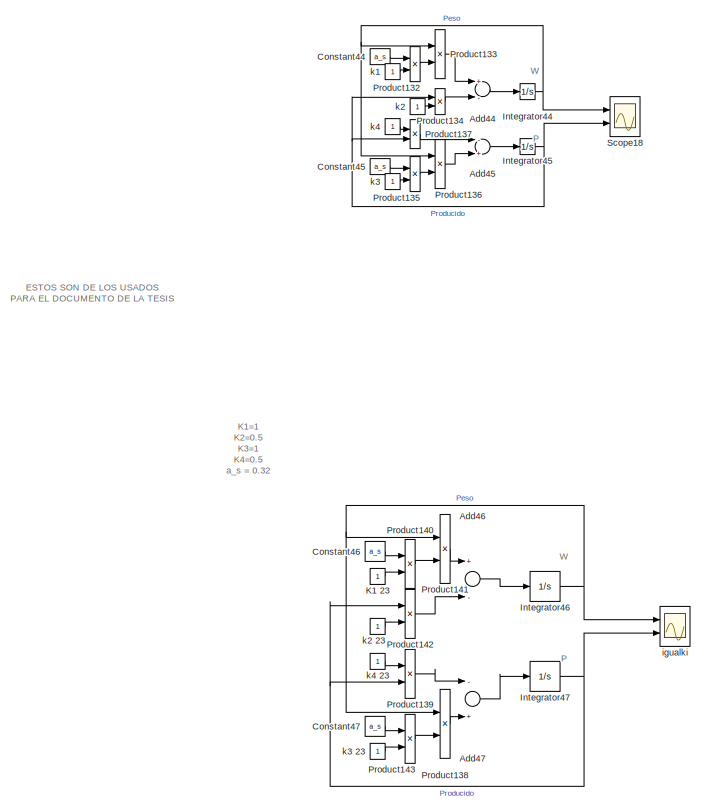
[diagram: root canvas - part 1/14, top right region]
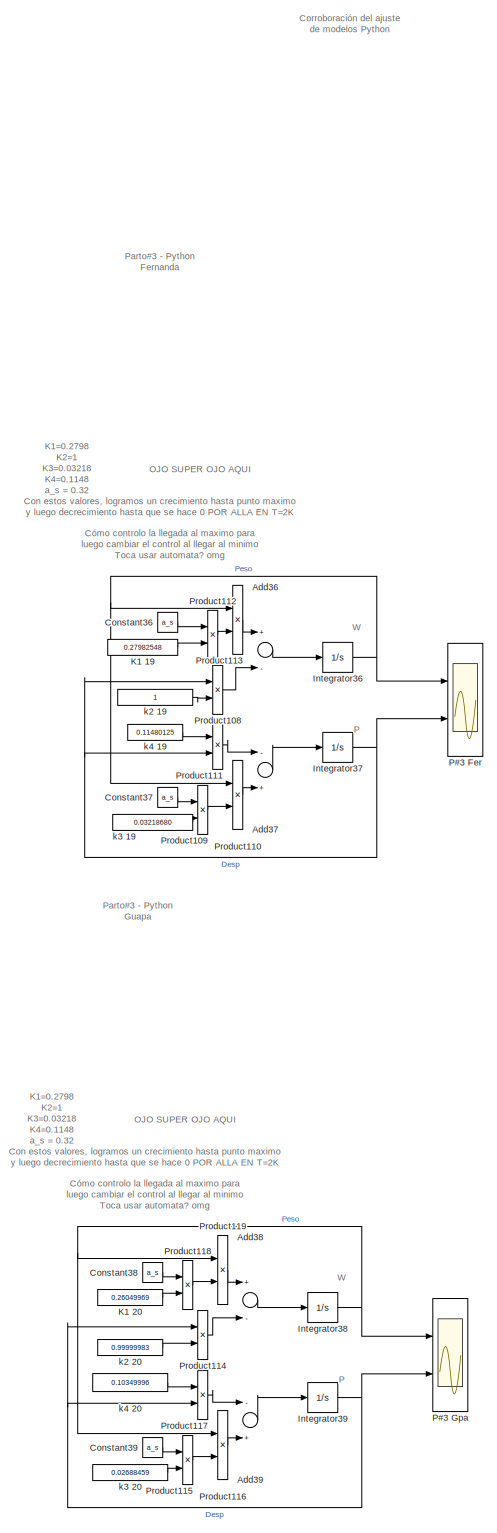
[diagram: root canvas - part 2/14, top right region]
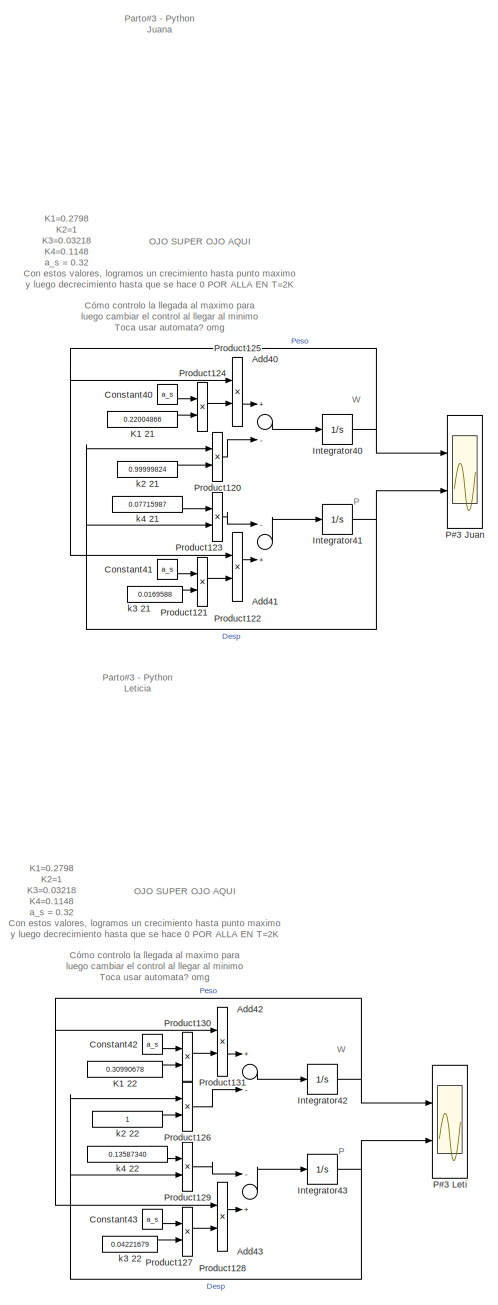
[diagram: root canvas - part 3/14, top right region]
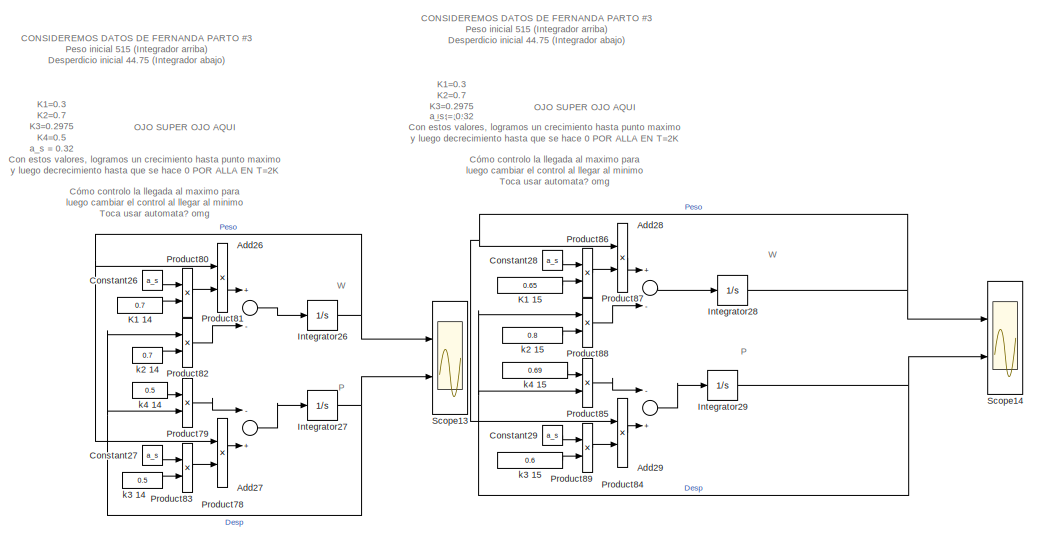
[diagram: root canvas - part 4/14, top center region]
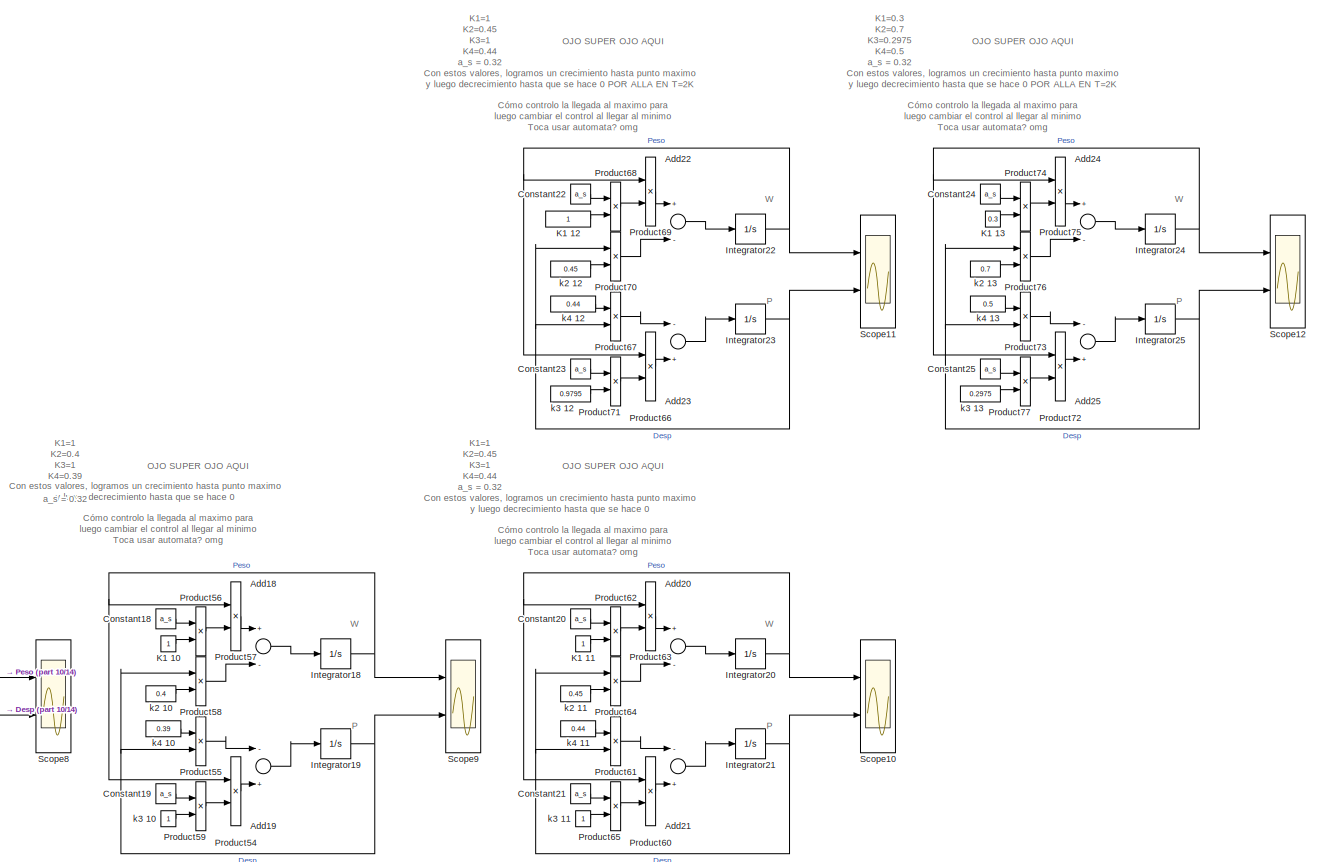
[diagram: root canvas - part 5/14, top center region]
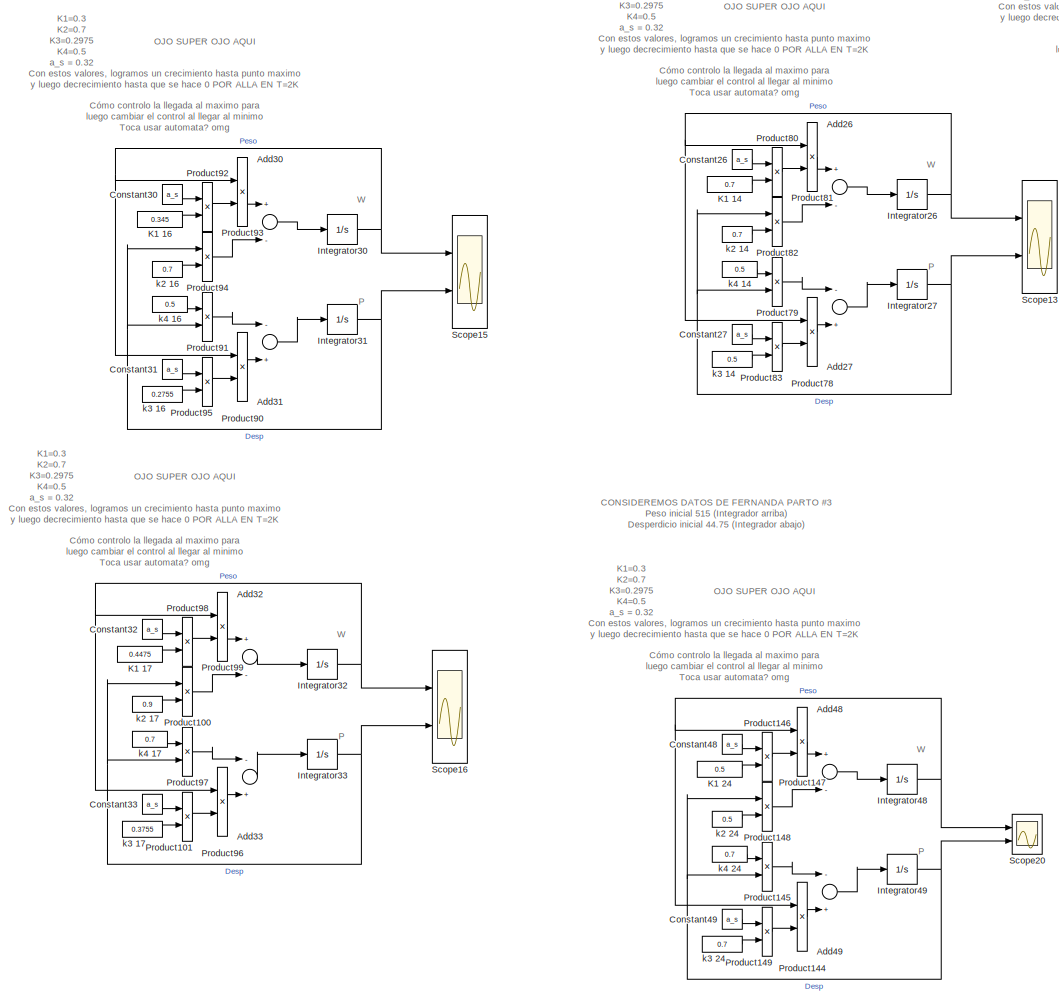
[diagram: root canvas - part 6/14, top center region]
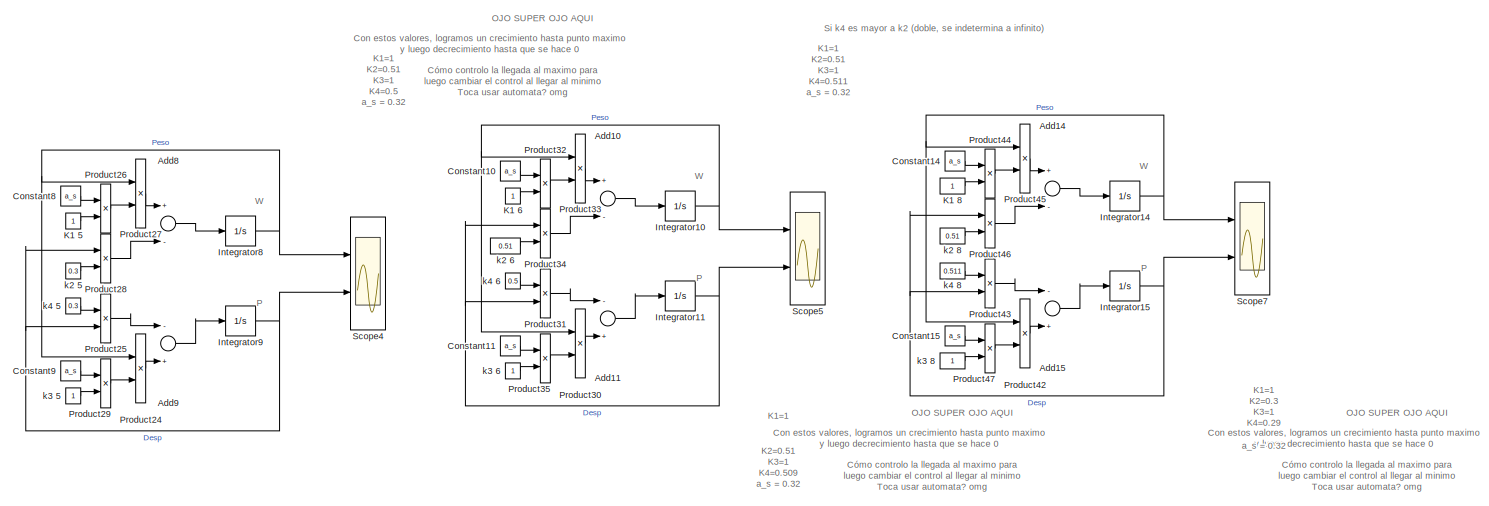
[diagram: root canvas - part 7/14, top left region]
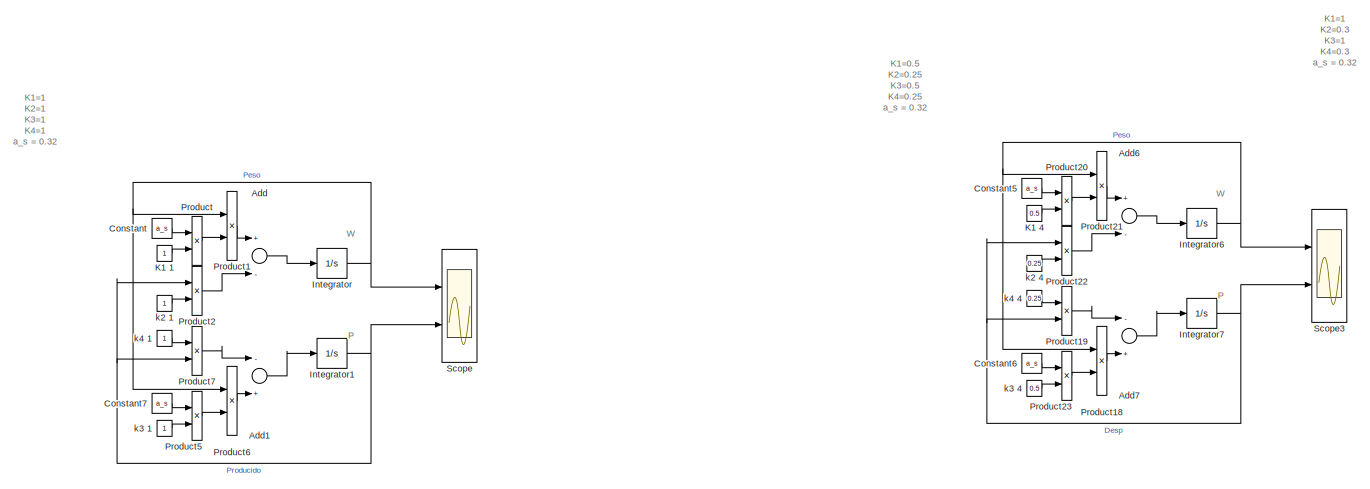
[diagram: root canvas - part 8/14, top left region]
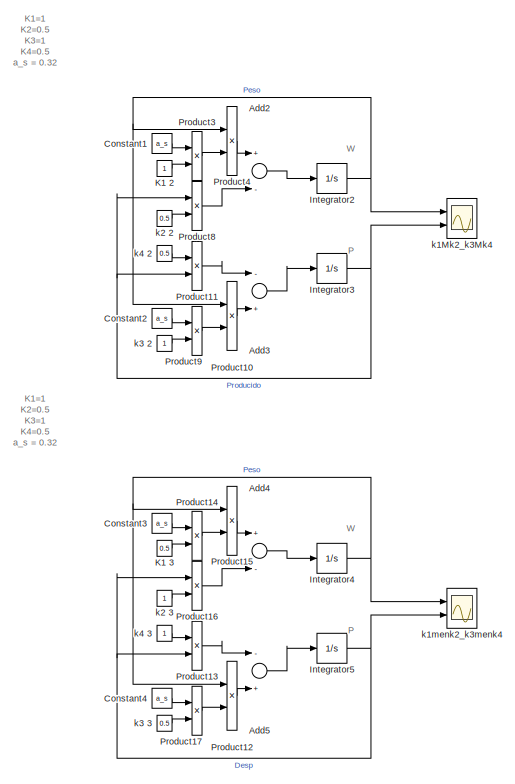
[diagram: root canvas - part 9/14, top right region]
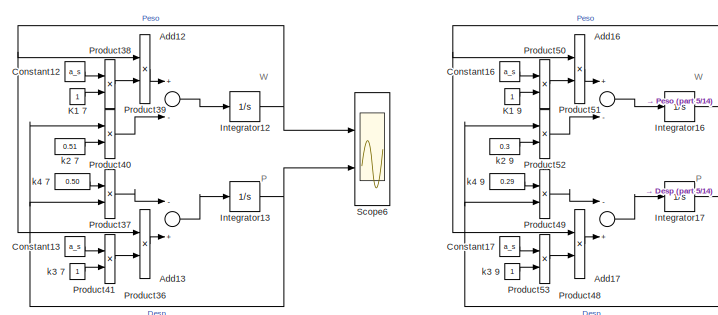
[diagram: root canvas - part 10/14, top left region]
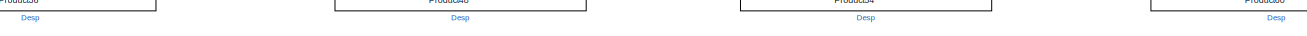
[diagram: root canvas - part 11/14, top left region]
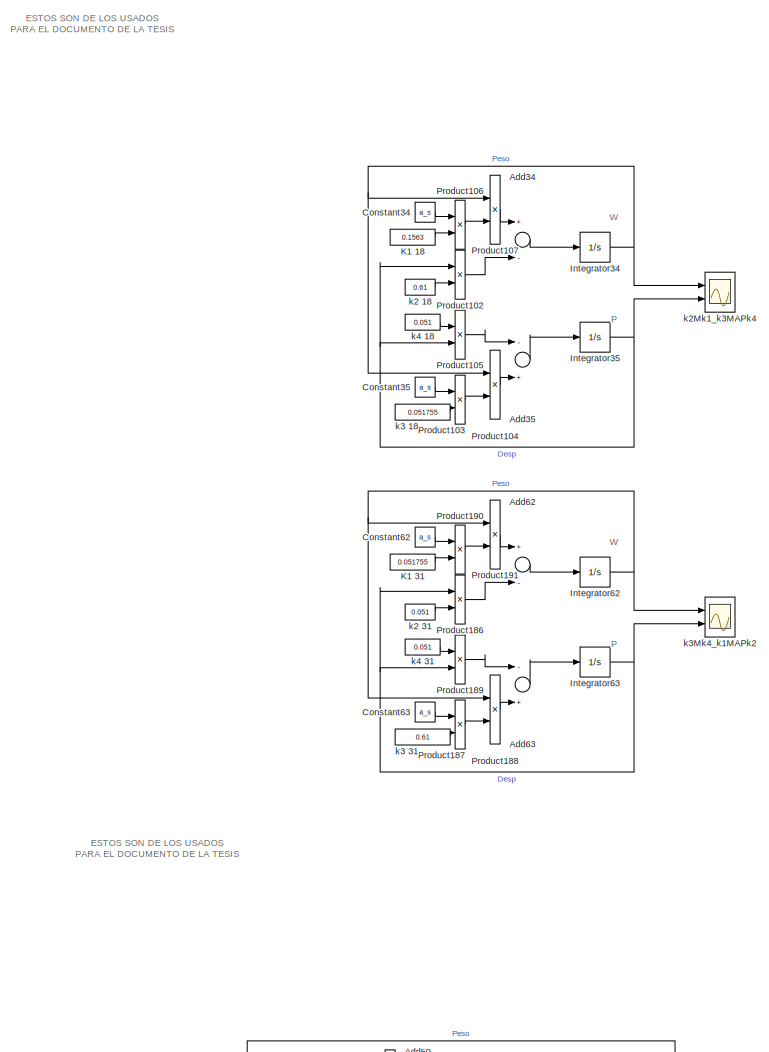
[diagram: root canvas - part 12/14, middle right region]
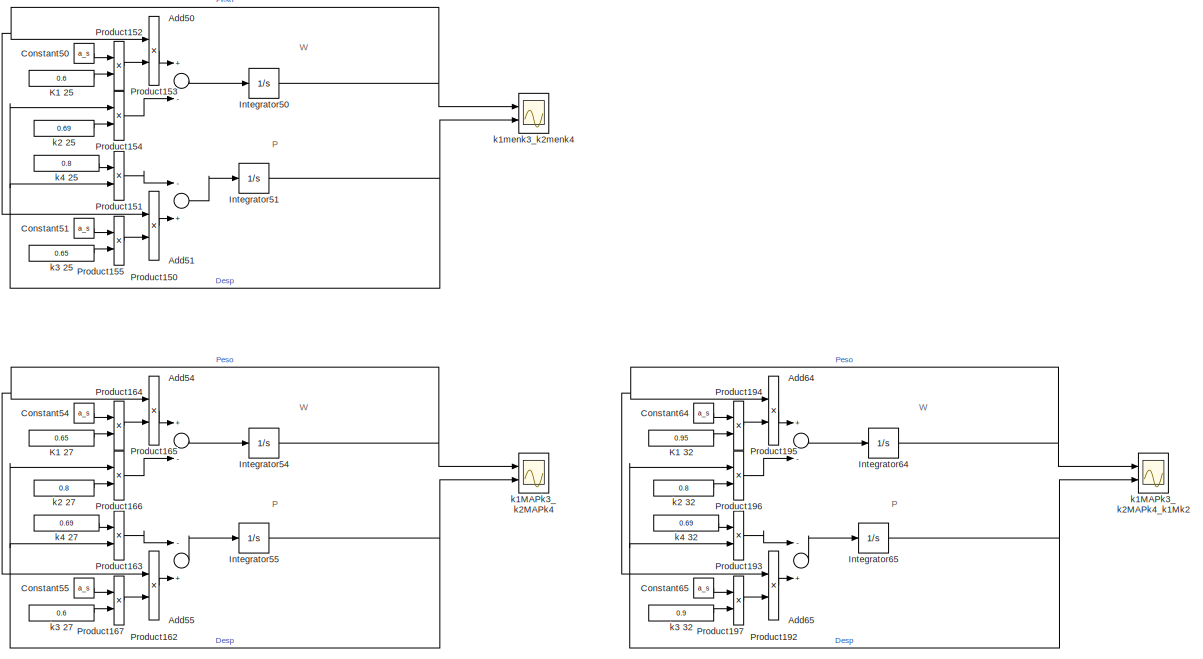
[diagram: root canvas - part 13/14, middle right region]
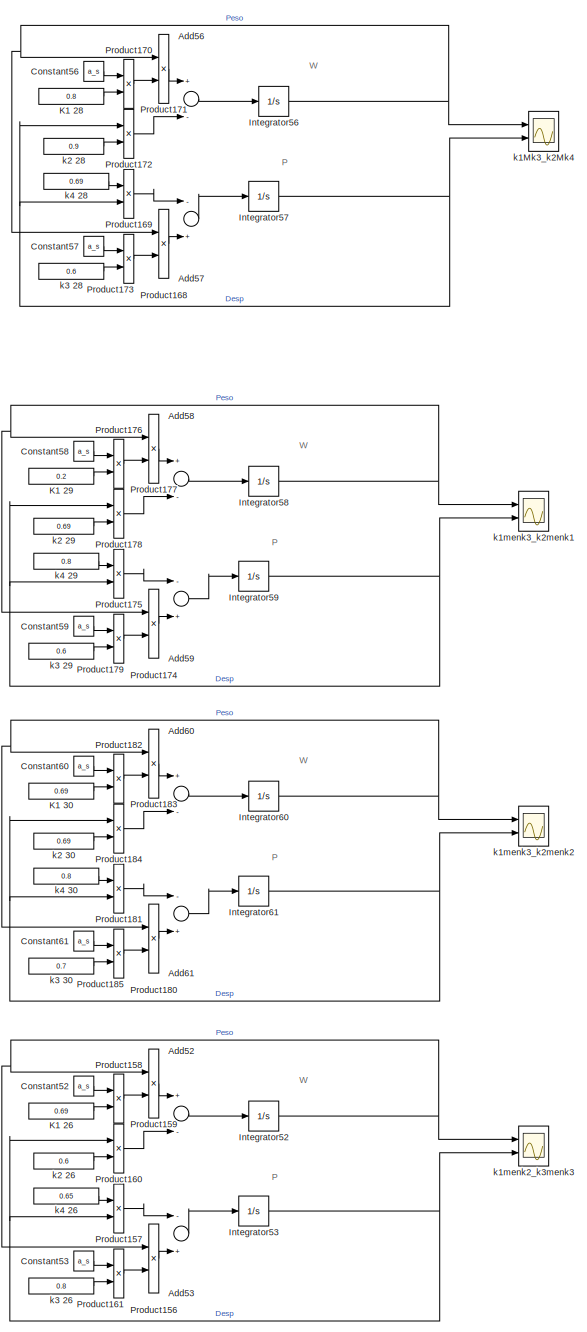
[diagram: root canvas - part 14/14, bottom right region]
MODEL slx_1f210d3f3017
KIND model
CONFIG AbsTol = auto
CONFIG EnableMultiTasking = off
CONFIG FixedStep = auto
CONFIG MaxStep = 0.01
CONFIG MinStep = auto
CONFIG RelTol = 1e-3
CONFIG SampleTimeConstraint = Unconstrained
CONFIG Solver = VariableStepAuto
CONFIG SolverName = VariableStepAuto
CONFIG StartTime = 0.0
CONFIG StopTime = 370
BLOCK [Sum] Add
  InputSameDT = off
  Inputs = +-
  OutDataTypeStr = Inherit: Inherit via internal rule
  Ports = [2, 1]
  SaturateOnIntegerOverflow = off
BLOCK [Sum] Add1
  InputSameDT = off
  Inputs = -+
  OutDataTypeStr = Inherit: Inherit via internal rule
  Ports = [2, 1]
  SaturateOnIntegerOverflow = off
BLOCK [Sum] Add10
  InputSameDT = off
  Inputs = +-
  OutDataTypeStr = Inherit: Inherit via internal rule
  Ports = [2, 1]
  SaturateOnIntegerOverflow = off
BLOCK [Sum] Add11
  InputSameDT = off
  Inputs = -+
  OutDataTypeStr = Inherit: Inherit via internal rule
  Ports = [2, 1]
  SaturateOnIntegerOverflow = off
BLOCK [Sum] Add12
  InputSameDT = off
  Inputs = +-
  OutDataTypeStr = Inherit: Inherit via internal rule
  Ports = [2, 1]
  SaturateOnIntegerOverflow = off
BLOCK [Sum] Add13
  InputSameDT = off
  Inputs = -+
  OutDataTypeStr = Inherit: Inherit via internal rule
  Ports = [2, 1]
  SaturateOnIntegerOverflow = off
BLOCK [Sum] Add14
  InputSameDT = off
  Inputs = +-
  OutDataTypeStr = Inherit: Inherit via internal rule
  Ports = [2, 1]
  SaturateOnIntegerOverflow = off
BLOCK [Sum] Add15
  InputSameDT = off
  Inputs = -+
  OutDataTypeStr = Inherit: Inherit via internal rule
  Ports = [2, 1]
  SaturateOnIntegerOverflow = off
BLOCK [Sum] Add16
  InputSameDT = off
  Inputs = +-
  OutDataTypeStr = Inherit: Inherit via internal rule
  Ports = [2, 1]
  SaturateOnIntegerOverflow = off
BLOCK [Sum] Add17
  InputSameDT = off
  Inputs = -+
  OutDataTypeStr = Inherit: Inherit via internal rule
  Ports = [2, 1]
  SaturateOnIntegerOverflow = off
BLOCK [Sum] Add18
  InputSameDT = off
  Inputs = +-
  OutDataTypeStr = Inherit: Inherit via internal rule
  Ports = [2, 1]
  SaturateOnIntegerOverflow = off
BLOCK [Sum] Add19
  InputSameDT = off
  Inputs = -+
  OutDataTypeStr = Inherit: Inherit via internal rule
  Ports = [2, 1]
  SaturateOnIntegerOverflow = off
BLOCK [Sum] Add2
  InputSameDT = off
  Inputs = +-
  OutDataTypeStr = Inherit: Inherit via internal rule
  Ports = [2, 1]
  SaturateOnIntegerOverflow = off
BLOCK [Sum] Add20
  InputSameDT = off
  Inputs = +-
  OutDataTypeStr = Inherit: Inherit via internal rule
  Ports = [2, 1]
  SaturateOnIntegerOverflow = off
BLOCK [Sum] Add21
  InputSameDT = off
  Inputs = -+
  OutDataTypeStr = Inherit: Inherit via internal rule
  Ports = [2, 1]
  SaturateOnIntegerOverflow = off
BLOCK [Sum] Add22
  InputSameDT = off
  Inputs = +-
  OutDataTypeStr = Inherit: Inherit via internal rule
  Ports = [2, 1]
  SaturateOnIntegerOverflow = off
BLOCK [Sum] Add23
  InputSameDT = off
  Inputs = -+
  OutDataTypeStr = Inherit: Inherit via internal rule
  Ports = [2, 1]
  SaturateOnIntegerOverflow = off
BLOCK [Sum] Add24
  InputSameDT = off
  Inputs = +-
  OutDataTypeStr = Inherit: Inherit via internal rule
  Ports = [2, 1]
  SaturateOnIntegerOverflow = off
BLOCK [Sum] Add25
  InputSameDT = off
  Inputs = -+
  OutDataTypeStr = Inherit: Inherit via internal rule
  Ports = [2, 1]
  SaturateOnIntegerOverflow = off
BLOCK [Sum] Add26
  InputSameDT = off
  Inputs = +-
  OutDataTypeStr = Inherit: Inherit via internal rule
  Ports = [2, 1]
  SaturateOnIntegerOverflow = off
BLOCK [Sum] Add27
  InputSameDT = off
  Inputs = -+
  OutDataTypeStr = Inherit: Inherit via internal rule
  Ports = [2, 1]
  SaturateOnIntegerOverflow = off
BLOCK [Sum] Add28
  InputSameDT = off
  Inputs = +-
  OutDataTypeStr = Inherit: Inherit via internal rule
  Ports = [2, 1]
  SaturateOnIntegerOverflow = off
BLOCK [Sum] Add29
  InputSameDT = off
  Inputs = -+
  OutDataTypeStr = Inherit: Inherit via internal rule
  Ports = [2, 1]
  SaturateOnIntegerOverflow = off
BLOCK [Sum] Add3
  InputSameDT = off
  Inputs = -+
  OutDataTypeStr = Inherit: Inherit via internal rule
  Ports = [2, 1]
  SaturateOnIntegerOverflow = off
BLOCK [Sum] Add30
  InputSameDT = off
  Inputs = +-
  OutDataTypeStr = Inherit: Inherit via internal rule
  Ports = [2, 1]
  SaturateOnIntegerOverflow = off
BLOCK [Sum] Add31
  InputSameDT = off
  Inputs = -+
  OutDataTypeStr = Inherit: Inherit via internal rule
  Ports = [2, 1]
  SaturateOnIntegerOverflow = off
BLOCK [Sum] Add32
  InputSameDT = off
  Inputs = +-
  OutDataTypeStr = Inherit: Inherit via internal rule
  Ports = [2, 1]
  SaturateOnIntegerOverflow = off
BLOCK [Sum] Add33
  InputSameDT = off
  Inputs = -+
  OutDataTypeStr = Inherit: Inherit via internal rule
  Ports = [2, 1]
  SaturateOnIntegerOverflow = off
BLOCK [Sum] Add34
  InputSameDT = off
  Inputs = +-
  OutDataTypeStr = Inherit: Inherit via internal rule
  Ports = [2, 1]
  SaturateOnIntegerOverflow = off
BLOCK [Sum] Add35
  InputSameDT = off
  Inputs = -+
  OutDataTypeStr = Inherit: Inherit via internal rule
  Ports = [2, 1]
  SaturateOnIntegerOverflow = off
BLOCK [Sum] Add36
  InputSameDT = off
  Inputs = +-
  OutDataTypeStr = Inherit: Inherit via internal rule
  Ports = [2, 1]
  SaturateOnIntegerOverflow = off
BLOCK [Sum] Add37
  InputSameDT = off
  Inputs = -+
  OutDataTypeStr = Inherit: Inherit via internal rule
  Ports = [2, 1]
  SaturateOnIntegerOverflow = off
BLOCK [Sum] Add38
  InputSameDT = off
  Inputs = +-
  OutDataTypeStr = Inherit: Inherit via internal rule
  Ports = [2, 1]
  SaturateOnIntegerOverflow = off
BLOCK [Sum] Add39
  InputSameDT = off
  Inputs = -+
  OutDataTypeStr = Inherit: Inherit via internal rule
  Ports = [2, 1]
  SaturateOnIntegerOverflow = off
BLOCK [Sum] Add4
  InputSameDT = off
  Inputs = +-
  OutDataTypeStr = Inherit: Inherit via internal rule
  Ports = [2, 1]
  SaturateOnIntegerOverflow = off
BLOCK [Sum] Add40
  InputSameDT = off
  Inputs = +-
  OutDataTypeStr = Inherit: Inherit via internal rule
  Ports = [2, 1]
  SaturateOnIntegerOverflow = off
BLOCK [Sum] Add41
  InputSameDT = off
  Inputs = -+
  OutDataTypeStr = Inherit: Inherit via internal rule
  Ports = [2, 1]
  SaturateOnIntegerOverflow = off
BLOCK [Sum] Add42
  InputSameDT = off
  Inputs = +-
  OutDataTypeStr = Inherit: Inherit via internal rule
  Ports = [2, 1]
  SaturateOnIntegerOverflow = off
BLOCK [Sum] Add43
  InputSameDT = off
  Inputs = -+
  OutDataTypeStr = Inherit: Inherit via internal rule
  Ports = [2, 1]
  SaturateOnIntegerOverflow = off
BLOCK [Sum] Add44
  InputSameDT = off
  Inputs = +-
  OutDataTypeStr = Inherit: Inherit via internal rule
  Ports = [2, 1]
  SaturateOnIntegerOverflow = off
BLOCK [Sum] Add45
  InputSameDT = off
  Inputs = -+
  OutDataTypeStr = Inherit: Inherit via internal rule
  Ports = [2, 1]
  SaturateOnIntegerOverflow = off
BLOCK [Sum] Add46
  InputSameDT = off
  Inputs = +-
  OutDataTypeStr = Inherit: Inherit via internal rule
  Ports = [2, 1]
  SaturateOnIntegerOverflow = off
BLOCK [Sum] Add47
  InputSameDT = off
  Inputs = -+
  OutDataTypeStr = Inherit: Inherit via internal rule
  Ports = [2, 1]
  SaturateOnIntegerOverflow = off
BLOCK [Sum] Add48
  InputSameDT = off
  Inputs = +-
  OutDataTypeStr = Inherit: Inherit via internal rule
  Ports = [2, 1]
  SaturateOnIntegerOverflow = off
BLOCK [Sum] Add49
  InputSameDT = off
  Inputs = -+
  OutDataTypeStr = Inherit: Inherit via internal rule
  Ports = [2, 1]
  SaturateOnIntegerOverflow = off
BLOCK [Sum] Add5
  InputSameDT = off
  Inputs = -+
  OutDataTypeStr = Inherit: Inherit via internal rule
  Ports = [2, 1]
  SaturateOnIntegerOverflow = off
BLOCK [Sum] Add50
  InputSameDT = off
  Inputs = +-
  OutDataTypeStr = Inherit: Inherit via internal rule
  Ports = [2, 1]
  SaturateOnIntegerOverflow = off
BLOCK [Sum] Add51
  InputSameDT = off
  Inputs = -+
  OutDataTypeStr = Inherit: Inherit via internal rule
  Ports = [2, 1]
  SaturateOnIntegerOverflow = off
BLOCK [Sum] Add52
  InputSameDT = off
  Inputs = +-
  OutDataTypeStr = Inherit: Inherit via internal rule
  Ports = [2, 1]
  SaturateOnIntegerOverflow = off
BLOCK [Sum] Add53
  InputSameDT = off
  Inputs = -+
  OutDataTypeStr = Inherit: Inherit via internal rule
  Ports = [2, 1]
  SaturateOnIntegerOverflow = off
BLOCK [Sum] Add54
  InputSameDT = off
  Inputs = +-
  OutDataTypeStr = Inherit: Inherit via internal rule
  Ports = [2, 1]
  SaturateOnIntegerOverflow = off
BLOCK [Sum] Add55
  InputSameDT = off
  Inputs = -+
  OutDataTypeStr = Inherit: Inherit via internal rule
  Ports = [2, 1]
  SaturateOnIntegerOverflow = off
BLOCK [Sum] Add56
  InputSameDT = off
  Inputs = +-
  OutDataTypeStr = Inherit: Inherit via internal rule
  Ports = [2, 1]
  SaturateOnIntegerOverflow = off
BLOCK [Sum] Add57
  InputSameDT = off
  Inputs = -+
  OutDataTypeStr = Inherit: Inherit via internal rule
  Ports = [2, 1]
  SaturateOnIntegerOverflow = off
BLOCK [Sum] Add58
  InputSameDT = off
  Inputs = +-
  OutDataTypeStr = Inherit: Inherit via internal rule
  Ports = [2, 1]
  SaturateOnIntegerOverflow = off
BLOCK [Sum] Add59
  InputSameDT = off
  Inputs = -+
  OutDataTypeStr = Inherit: Inherit via internal rule
  Ports = [2, 1]
  SaturateOnIntegerOverflow = off
BLOCK [Sum] Add6
  InputSameDT = off
  Inputs = +-
  OutDataTypeStr = Inherit: Inherit via internal rule
  Ports = [2, 1]
  SaturateOnIntegerOverflow = off
BLOCK [Sum] Add60
  InputSameDT = off
  Inputs = +-
  OutDataTypeStr = Inherit: Inherit via internal rule
  Ports = [2, 1]
  SaturateOnIntegerOverflow = off
BLOCK [Sum] Add61
  InputSameDT = off
  Inputs = -+
  OutDataTypeStr = Inherit: Inherit via internal rule
  Ports = [2, 1]
  SaturateOnIntegerOverflow = off
BLOCK [Sum] Add62
  InputSameDT = off
  Inputs = +-
  OutDataTypeStr = Inherit: Inherit via internal rule
  Ports = [2, 1]
  SaturateOnIntegerOverflow = off
BLOCK [Sum] Add63
  InputSameDT = off
  Inputs = -+
  OutDataTypeStr = Inherit: Inherit via internal rule
  Ports = [2, 1]
  SaturateOnIntegerOverflow = off
BLOCK [Sum] Add64
  InputSameDT = off
  Inputs = +-
  OutDataTypeStr = Inherit: Inherit via internal rule
  Ports = [2, 1]
  SaturateOnIntegerOverflow = off
BLOCK [Sum] Add65
  InputSameDT = off
  Inputs = -+
  OutDataTypeStr = Inherit: Inherit via internal rule
  Ports = [2, 1]
  SaturateOnIntegerOverflow = off
BLOCK [Sum] Add7
  InputSameDT = off
  Inputs = -+
  OutDataTypeStr = Inherit: Inherit via internal rule
  Ports = [2, 1]
  SaturateOnIntegerOverflow = off
BLOCK [Sum] Add8
  InputSameDT = off
  Inputs = +-
  OutDataTypeStr = Inherit: Inherit via internal rule
  Ports = [2, 1]
  SaturateOnIntegerOverflow = off
BLOCK [Sum] Add9
  InputSameDT = off
  Inputs = -+
  OutDataTypeStr = Inherit: Inherit via internal rule
  Ports = [2, 1]
  SaturateOnIntegerOverflow = off
BLOCK [Constant] Constant
  Value = a_s
BLOCK [Constant] Constant1
  Value = a_s
BLOCK [Constant] Constant10
  Value = a_s
BLOCK [Constant] Constant11
  Value = a_s
BLOCK [Constant] Constant12
  Value = a_s
BLOCK [Constant] Constant13
  Value = a_s
BLOCK [Constant] Constant14
  Value = a_s
BLOCK [Constant] Constant15
  Value = a_s
BLOCK [Constant] Constant16
  Value = a_s
BLOCK [Constant] Constant17
  Value = a_s
BLOCK [Constant] Constant18
  Value = a_s
BLOCK [Constant] Constant19
  Value = a_s
BLOCK [Constant] Constant2
  Value = a_s
BLOCK [Constant] Constant20
  Value = a_s
BLOCK [Constant] Constant21
  Value = a_s
BLOCK [Constant] Constant22
  Value = a_s
BLOCK [Constant] Constant23
  Value = a_s
BLOCK [Constant] Constant24
  Value = a_s
BLOCK [Constant] Constant25
  Value = a_s
BLOCK [Constant] Constant26
  Value = a_s
BLOCK [Constant] Constant27
  Value = a_s
BLOCK [Constant] Constant28
  Value = a_s
BLOCK [Constant] Constant29
  Value = a_s
BLOCK [Constant] Constant3
  Value = a_s
BLOCK [Constant] Constant30
  Value = a_s
BLOCK [Constant] Constant31
  Value = a_s
BLOCK [Constant] Constant32
  Value = a_s
BLOCK [Constant] Constant33
  Value = a_s
BLOCK [Constant] Constant34
  Value = a_s
BLOCK [Constant] Constant35
  Value = a_s
BLOCK [Constant] Constant36
  Value = a_s
BLOCK [Constant] Constant37
  Value = a_s
BLOCK [Constant] Constant38
  Value = a_s
BLOCK [Constant] Constant39
  Value = a_s
BLOCK [Constant] Constant4
  Value = a_s
BLOCK [Constant] Constant40
  Value = a_s
BLOCK [Constant] Constant41
  Value = a_s
BLOCK [Constant] Constant42
  Value = a_s
BLOCK [Constant] Constant43
  Value = a_s
BLOCK [Constant] Constant44
  Value = a_s
BLOCK [Constant] Constant45
  Value = a_s
BLOCK [Constant] Constant46
  Value = a_s
BLOCK [Constant] Constant47
  Value = a_s
BLOCK [Constant] Constant48
  Value = a_s
BLOCK [Constant] Constant49
  Value = a_s
BLOCK [Constant] Constant5
  Value = a_s
BLOCK [Constant] Constant50
  Value = a_s
BLOCK [Constant] Constant51
  Value = a_s
BLOCK [Constant] Constant52
  Value = a_s
BLOCK [Constant] Constant53
  Value = a_s
BLOCK [Constant] Constant54
  Value = a_s
BLOCK [Constant] Constant55
  Value = a_s
BLOCK [Constant] Constant56
  Value = a_s
BLOCK [Constant] Constant57
  Value = a_s
BLOCK [Constant] Constant58
  Value = a_s
BLOCK [Constant] Constant59
  Value = a_s
BLOCK [Constant] Constant6
  Value = a_s
BLOCK [Constant] Constant60
  Value = a_s
BLOCK [Constant] Constant61
  Value = a_s
BLOCK [Constant] Constant62
  Value = a_s
BLOCK [Constant] Constant63
  Value = a_s
BLOCK [Constant] Constant64
  Value = a_s
BLOCK [Constant] Constant65
  Value = a_s
BLOCK [Constant] Constant7
  Value = a_s
BLOCK [Constant] Constant8
  Value = a_s
BLOCK [Constant] Constant9
  Value = a_s
BLOCK [Integrator] Integrator
  InitialCondition = 400
  Ports = [1, 1]
BLOCK [Integrator] Integrator1
  InitialCondition = 40
  Ports = [1, 1]
BLOCK [Integrator] Integrator10
  InitialCondition = 400
  Ports = [1, 1]
BLOCK [Integrator] Integrator11
  InitialCondition = 40
  Ports = [1, 1]
BLOCK [Integrator] Integrator12
  InitialCondition = 400
  Ports = [1, 1]
BLOCK [Integrator] Integrator13
  InitialCondition = 40
  Ports = [1, 1]
BLOCK [Integrator] Integrator14
  InitialCondition = 400
  Ports = [1, 1]
BLOCK [Integrator] Integrator15
  InitialCondition = 40
  Ports = [1, 1]
BLOCK [Integrator] Integrator16
  InitialCondition = 400
  Ports = [1, 1]
BLOCK [Integrator] Integrator17
  InitialCondition = 40
  Ports = [1, 1]
BLOCK [Integrator] Integrator18
  InitialCondition = 400
  Ports = [1, 1]
BLOCK [Integrator] Integrator19
  InitialCondition = 40
  Ports = [1, 1]
BLOCK [Integrator] Integrator2
  InitialCondition = 400
  Ports = [1, 1]
BLOCK [Integrator] Integrator20
  InitialCondition = 400
  Ports = [1, 1]
BLOCK [Integrator] Integrator21
  InitialCondition = 40
  Ports = [1, 1]
BLOCK [Integrator] Integrator22
  InitialCondition = 400
  Ports = [1, 1]
BLOCK [Integrator] Integrator23
  InitialCondition = 40
  Ports = [1, 1]
BLOCK [Integrator] Integrator24
  InitialCondition = 400
  Ports = [1, 1]
BLOCK [Integrator] Integrator25
  InitialCondition = 40
  Ports = [1, 1]
BLOCK [Integrator] Integrator26
  InitialCondition = 515
  Ports = [1, 1]
BLOCK [Integrator] Integrator27
  InitialCondition = 44.75
  Ports = [1, 1]
BLOCK [Integrator] Integrator28
  InitialCondition = 515
  Ports = [1, 1]
BLOCK [Integrator] Integrator29
  InitialCondition = 44.75
  Ports = [1, 1]
BLOCK [Integrator] Integrator3
  InitialCondition = 40
  Ports = [1, 1]
BLOCK [Integrator] Integrator30
  InitialCondition = 400
  Ports = [1, 1]
BLOCK [Integrator] Integrator31
  InitialCondition = 40
  Ports = [1, 1]
BLOCK [Integrator] Integrator32
  InitialCondition = 400
  Ports = [1, 1]
BLOCK [Integrator] Integrator33
  InitialCondition = 40
  Ports = [1, 1]
BLOCK [Integrator] Integrator34
  InitialCondition = 400
  Ports = [1, 1]
BLOCK [Integrator] Integrator35
  InitialCondition = 40
  Ports = [1, 1]
BLOCK [Integrator] Integrator36
  InitialCondition = 515
  Ports = [1, 1]
BLOCK [Integrator] Integrator37
  InitialCondition = 44.75
  Ports = [1, 1]
BLOCK [Integrator] Integrator38
  InitialCondition = 500
  Ports = [1, 1]
BLOCK [Integrator] Integrator39
  InitialCondition = 44
  Ports = [1, 1]
BLOCK [Integrator] Integrator4
  InitialCondition = 400
  Ports = [1, 1]
BLOCK [Integrator] Integrator40
  InitialCondition = 600
  Ports = [1, 1]
BLOCK [Integrator] Integrator41
  InitialCondition = 43.4
  Ports = [1, 1]
BLOCK [Integrator] Integrator42
  InitialCondition = 396
  Ports = [1, 1]
BLOCK [Integrator] Integrator43
  InitialCondition = 36.2
  Ports = [1, 1]
BLOCK [Integrator] Integrator44
  InitialCondition = 400
  Ports = [1, 1]
BLOCK [Integrator] Integrator45
  InitialCondition = 40
  Ports = [1, 1]
BLOCK [Integrator] Integrator46
  InitialCondition = 400
  Ports = [1, 1]
BLOCK [Integrator] Integrator47
  InitialCondition = 40
  Ports = [1, 1]
BLOCK [Integrator] Integrator48
  InitialCondition = 400
  Ports = [1, 1]
BLOCK [Integrator] Integrator49
  InitialCondition = 40
  Ports = [1, 1]
BLOCK [Integrator] Integrator5
  InitialCondition = 40
  Ports = [1, 1]
BLOCK [Integrator] Integrator50
  InitialCondition = 400
  Ports = [1, 1]
BLOCK [Integrator] Integrator51
  InitialCondition = 40
  Ports = [1, 1]
BLOCK [Integrator] Integrator52
  InitialCondition = 400
  Ports = [1, 1]
BLOCK [Integrator] Integrator53
  InitialCondition = 40
  Ports = [1, 1]
BLOCK [Integrator] Integrator54
  InitialCondition = 400
  Ports = [1, 1]
BLOCK [Integrator] Integrator55
  InitialCondition = 40
  Ports = [1, 1]
BLOCK [Integrator] Integrator56
  InitialCondition = 400
  Ports = [1, 1]
BLOCK [Integrator] Integrator57
  InitialCondition = 40
  Ports = [1, 1]
BLOCK [Integrator] Integrator58
  InitialCondition = 400
  Ports = [1, 1]
BLOCK [Integrator] Integrator59
  InitialCondition = 40
  Ports = [1, 1]
BLOCK [Integrator] Integrator6
  InitialCondition = 400
  Ports = [1, 1]
BLOCK [Integrator] Integrator60
  InitialCondition = 400
  Ports = [1, 1]
BLOCK [Integrator] Integrator61
  InitialCondition = 40
  Ports = [1, 1]
BLOCK [Integrator] Integrator62
  InitialCondition = 400
  Ports = [1, 1]
BLOCK [Integrator] Integrator63
  InitialCondition = 40
  Ports = [1, 1]
BLOCK [Integrator] Integrator64
  InitialCondition = 400
  Ports = [1, 1]
BLOCK [Integrator] Integrator65
  InitialCondition = 40
  Ports = [1, 1]
BLOCK [Integrator] Integrator7
  InitialCondition = 40
  Ports = [1, 1]
BLOCK [Integrator] Integrator8
  InitialCondition = 400
  Ports = [1, 1]
BLOCK [Integrator] Integrator9
  InitialCondition = 40
  Ports = [1, 1]
BLOCK [Constant] K1 1
BLOCK [Constant] K1 10
BLOCK [Constant] K1 11
BLOCK [Constant] K1 12
BLOCK [Constant] K1 13
  Value = 0.3
BLOCK [Constant] K1 14
  Value = 0.7
BLOCK [Constant] K1 15
  Value = 0.65
BLOCK [Constant] K1 16
  Value = 0.345
BLOCK [Constant] K1 17
  Value = 0.4475
BLOCK [Constant] K1 18
  Value = 0.1563
BLOCK [Constant] K1 19
  Value = 0.27982548
BLOCK [Constant] K1 2
BLOCK [Constant] K1 20
  Value = 0.26049969
BLOCK [Constant] K1 21
  Value = 0.22004866
BLOCK [Constant] K1 22
  Value = 0.30990678
BLOCK [Constant] K1 23
BLOCK [Constant] K1 24
  Value = 0.5
BLOCK [Constant] K1 25
  Value = 0.6
BLOCK [Constant] K1 26
  Value = 0.69
BLOCK [Constant] K1 27
  Value = 0.65
BLOCK [Constant] K1 28
  Value = 0.8
BLOCK [Constant] K1 29
  Value = 0.2
BLOCK [Constant] K1 3
  Value = 0.5
BLOCK [Constant] K1 30
  Value = 0.69
BLOCK [Constant] K1 31
  Value = 0.051755
BLOCK [Constant] K1 32
  Value = 0.95
BLOCK [Constant] K1 4
  Value = 0.5
BLOCK [Constant] K1 5
BLOCK [Constant] K1 6
BLOCK [Constant] K1 7
BLOCK [Constant] K1 8
BLOCK [Constant] K1 9
BLOCK [Scope] P#3 Fer
  Floating = off
  NumInputPorts = 2
  Ports = [2]
  ScopeSpecificationString = Simulink.scopes.TimeScopeBlockCfg('CurrentConfiguration', extmgr.ConfigurationSet(extmgr.Configuration('Core','General UI',true),extmgr.Configuration('Core','Source UI',true),extmgr.Configuration('Sources','WiredSimulink',true,'DataLoggingVariableName','ScopeData4'),extmgr.Configuration('Visuals','Time Domain',true,'SerializedDisplays',{struct('MinYLimReal','422.78213','MaxYLimReal','558.51547','Y...<+2082ch>
BLOCK [Scope] P#3 Gpa
  Floating = off
  NumInputPorts = 2
  Ports = [2]
  ScopeSpecificationString = Simulink.scopes.TimeScopeBlockCfg('CurrentConfiguration', extmgr.ConfigurationSet(extmgr.Configuration('Core','General UI',true),extmgr.Configuration('Core','Source UI',true),extmgr.Configuration('Sources','WiredSimulink',true,'DataLoggingVariableName','ScopeData5'),extmgr.Configuration('Visuals','Time Domain',true,'SerializedDisplays',{struct('MinYLimReal','412.98603','MaxYLimReal','586.8684','YL...<+2078ch>
BLOCK [Scope] P#3 Juan
  Floating = off
  NumInputPorts = 2
  Ports = [2]
  ScopeSpecificationString = Simulink.scopes.TimeScopeBlockCfg('CurrentConfiguration', extmgr.ConfigurationSet(extmgr.Configuration('Core','General UI',true),extmgr.Configuration('Core','Source UI',true),extmgr.Configuration('Sources','WiredSimulink',true,'DataLoggingVariableName','ScopeData6'),extmgr.Configuration('Visuals','Time Domain',true,'SerializedDisplays',{struct('MinYLimReal','510.07679','MaxYLimReal','609.99147','Y...<+2084ch>
BLOCK [Scope] P#3 Leti
  Floating = off
  NumInputPorts = 2
  Ports = [2]
  ScopeSpecificationString = Simulink.scopes.TimeScopeBlockCfg('CurrentConfiguration', extmgr.ConfigurationSet(extmgr.Configuration('Core','General UI',true),extmgr.Configuration('Core','Source UI',true),extmgr.Configuration('Sources','WiredSimulink',true,'DataLoggingVariableName','ScopeData7'),extmgr.Configuration('Visuals','Time Domain',true,'SerializedDisplays',{struct('MinYLimReal','331.83005','MaxYLimReal','469.50906','Y...<+2082ch>
BLOCK [Product] Product
  InputSameDT = off
  OutDataTypeStr = Inherit: Inherit via internal rule
  Ports = [2, 1]
  RndMeth = Floor
  SaturateOnIntegerOverflow = off
BLOCK [Product] Product1
  InputSameDT = off
  OutDataTypeStr = Inherit: Inherit via internal rule
  Ports = [2, 1]
  RndMeth = Floor
  SaturateOnIntegerOverflow = off
BLOCK [Product] Product10
  InputSameDT = off
  OutDataTypeStr = Inherit: Inherit via internal rule
  Ports = [2, 1]
  RndMeth = Floor
  SaturateOnIntegerOverflow = off
BLOCK [Product] Product100
  InputSameDT = off
  OutDataTypeStr = Inherit: Inherit via internal rule
  Ports = [2, 1]
  RndMeth = Floor
  SaturateOnIntegerOverflow = off
BLOCK [Product] Product101
  InputSameDT = off
  OutDataTypeStr = Inherit: Inherit via internal rule
  Ports = [2, 1]
  RndMeth = Floor
  SaturateOnIntegerOverflow = off
BLOCK [Product] Product102
  InputSameDT = off
  OutDataTypeStr = Inherit: Inherit via internal rule
  Ports = [2, 1]
  RndMeth = Floor
  SaturateOnIntegerOverflow = off
BLOCK [Product] Product103
  InputSameDT = off
  OutDataTypeStr = Inherit: Inherit via internal rule
  Ports = [2, 1]
  RndMeth = Floor
  SaturateOnIntegerOverflow = off
BLOCK [Product] Product104
  InputSameDT = off
  OutDataTypeStr = Inherit: Inherit via internal rule
  Ports = [2, 1]
  RndMeth = Floor
  SaturateOnIntegerOverflow = off
BLOCK [Product] Product105
  InputSameDT = off
  OutDataTypeStr = Inherit: Inherit via internal rule
  Ports = [2, 1]
  RndMeth = Floor
  SaturateOnIntegerOverflow = off
BLOCK [Product] Product106
  InputSameDT = off
  OutDataTypeStr = Inherit: Inherit via internal rule
  Ports = [2, 1]
  RndMeth = Floor
  SaturateOnIntegerOverflow = off
BLOCK [Product] Product107
  InputSameDT = off
  OutDataTypeStr = Inherit: Inherit via internal rule
  Ports = [2, 1]
  RndMeth = Floor
  SaturateOnIntegerOverflow = off
BLOCK [Product] Product108
  InputSameDT = off
  OutDataTypeStr = Inherit: Inherit via internal rule
  Ports = [2, 1]
  RndMeth = Floor
  SaturateOnIntegerOverflow = off
BLOCK [Product] Product109
  InputSameDT = off
  OutDataTypeStr = Inherit: Inherit via internal rule
  Ports = [2, 1]
  RndMeth = Floor
  SaturateOnIntegerOverflow = off
BLOCK [Product] Product11
  InputSameDT = off
  OutDataTypeStr = Inherit: Inherit via internal rule
  Ports = [2, 1]
  RndMeth = Floor
  SaturateOnIntegerOverflow = off
BLOCK [Product] Product110
  InputSameDT = off
  OutDataTypeStr = Inherit: Inherit via internal rule
  Ports = [2, 1]
  RndMeth = Floor
  SaturateOnIntegerOverflow = off
BLOCK [Product] Product111
  InputSameDT = off
  OutDataTypeStr = Inherit: Inherit via internal rule
  Ports = [2, 1]
  RndMeth = Floor
  SaturateOnIntegerOverflow = off
BLOCK [Product] Product112
  InputSameDT = off
  OutDataTypeStr = Inherit: Inherit via internal rule
  Ports = [2, 1]
  RndMeth = Floor
  SaturateOnIntegerOverflow = off
BLOCK [Product] Product113
  InputSameDT = off
  OutDataTypeStr = Inherit: Inherit via internal rule
  Ports = [2, 1]
  RndMeth = Floor
  SaturateOnIntegerOverflow = off
BLOCK [Product] Product114
  InputSameDT = off
  OutDataTypeStr = Inherit: Inherit via internal rule
  Ports = [2, 1]
  RndMeth = Floor
  SaturateOnIntegerOverflow = off
BLOCK [Product] Product115
  InputSameDT = off
  OutDataTypeStr = Inherit: Inherit via internal rule
  Ports = [2, 1]
  RndMeth = Floor
  SaturateOnIntegerOverflow = off
BLOCK [Product] Product116
  InputSameDT = off
  OutDataTypeStr = Inherit: Inherit via internal rule
  Ports = [2, 1]
  RndMeth = Floor
  SaturateOnIntegerOverflow = off
BLOCK [Product] Product117
  InputSameDT = off
  OutDataTypeStr = Inherit: Inherit via internal rule
  Ports = [2, 1]
  RndMeth = Floor
  SaturateOnIntegerOverflow = off
BLOCK [Product] Product118
  InputSameDT = off
  OutDataTypeStr = Inherit: Inherit via internal rule
  Ports = [2, 1]
  RndMeth = Floor
  SaturateOnIntegerOverflow = off
BLOCK [Product] Product119
  InputSameDT = off
  OutDataTypeStr = Inherit: Inherit via internal rule
  Ports = [2, 1]
  RndMeth = Floor
  SaturateOnIntegerOverflow = off
BLOCK [Product] Product12
  InputSameDT = off
  OutDataTypeStr = Inherit: Inherit via internal rule
  Ports = [2, 1]
  RndMeth = Floor
  SaturateOnIntegerOverflow = off
BLOCK [Product] Product120
  InputSameDT = off
  OutDataTypeStr = Inherit: Inherit via internal rule
  Ports = [2, 1]
  RndMeth = Floor
  SaturateOnIntegerOverflow = off
BLOCK [Product] Product121
  InputSameDT = off
  OutDataTypeStr = Inherit: Inherit via internal rule
  Ports = [2, 1]
  RndMeth = Floor
  SaturateOnIntegerOverflow = off
BLOCK [Product] Product122
  InputSameDT = off
  OutDataTypeStr = Inherit: Inherit via internal rule
  Ports = [2, 1]
  RndMeth = Floor
  SaturateOnIntegerOverflow = off
BLOCK [Product] Product123
  InputSameDT = off
  OutDataTypeStr = Inherit: Inherit via internal rule
  Ports = [2, 1]
  RndMeth = Floor
  SaturateOnIntegerOverflow = off
BLOCK [Product] Product124
  InputSameDT = off
  OutDataTypeStr = Inherit: Inherit via internal rule
  Ports = [2, 1]
  RndMeth = Floor
  SaturateOnIntegerOverflow = off
BLOCK [Product] Product125
  InputSameDT = off
  OutDataTypeStr = Inherit: Inherit via internal rule
  Ports = [2, 1]
  RndMeth = Floor
  SaturateOnIntegerOverflow = off
BLOCK [Product] Product126
  InputSameDT = off
  OutDataTypeStr = Inherit: Inherit via internal rule
  Ports = [2, 1]
  RndMeth = Floor
  SaturateOnIntegerOverflow = off
BLOCK [Product] Product127
  InputSameDT = off
  OutDataTypeStr = Inherit: Inherit via internal rule
  Ports = [2, 1]
  RndMeth = Floor
  SaturateOnIntegerOverflow = off
BLOCK [Product] Product128
  InputSameDT = off
  OutDataTypeStr = Inherit: Inherit via internal rule
  Ports = [2, 1]
  RndMeth = Floor
  SaturateOnIntegerOverflow = off
BLOCK [Product] Product129
  InputSameDT = off
  OutDataTypeStr = Inherit: Inherit via internal rule
  Ports = [2, 1]
  RndMeth = Floor
  SaturateOnIntegerOverflow = off
BLOCK [Product] Product13
  InputSameDT = off
  OutDataTypeStr = Inherit: Inherit via internal rule
  Ports = [2, 1]
  RndMeth = Floor
  SaturateOnIntegerOverflow = off
BLOCK [Product] Product130
  InputSameDT = off
  OutDataTypeStr = Inherit: Inherit via internal rule
  Ports = [2, 1]
  RndMeth = Floor
  SaturateOnIntegerOverflow = off
BLOCK [Product] Product131
  InputSameDT = off
  OutDataTypeStr = Inherit: Inherit via internal rule
  Ports = [2, 1]
  RndMeth = Floor
  SaturateOnIntegerOverflow = off
BLOCK [Product] Product132
  InputSameDT = off
  OutDataTypeStr = Inherit: Inherit via internal rule
  Ports = [2, 1]
  RndMeth = Floor
  SaturateOnIntegerOverflow = off
BLOCK [Product] Product133
  InputSameDT = off
  OutDataTypeStr = Inherit: Inherit via internal rule
  Ports = [2, 1]
  RndMeth = Floor
  SaturateOnIntegerOverflow = off
BLOCK [Product] Product134
  InputSameDT = off
  OutDataTypeStr = Inherit: Inherit via internal rule
  Ports = [2, 1]
  RndMeth = Floor
  SaturateOnIntegerOverflow = off
BLOCK [Product] Product135
  InputSameDT = off
  OutDataTypeStr = Inherit: Inherit via internal rule
  Ports = [2, 1]
  RndMeth = Floor
  SaturateOnIntegerOverflow = off
BLOCK [Product] Product136
  InputSameDT = off
  OutDataTypeStr = Inherit: Inherit via internal rule
  Ports = [2, 1]
  RndMeth = Floor
  SaturateOnIntegerOverflow = off
BLOCK [Product] Product137
  InputSameDT = off
  OutDataTypeStr = Inherit: Inherit via internal rule
  Ports = [2, 1]
  RndMeth = Floor
  SaturateOnIntegerOverflow = off
BLOCK [Product] Product138
  InputSameDT = off
  OutDataTypeStr = Inherit: Inherit via internal rule
  Ports = [2, 1]
  RndMeth = Floor
  SaturateOnIntegerOverflow = off
BLOCK [Product] Product139
  InputSameDT = off
  OutDataTypeStr = Inherit: Inherit via internal rule
  Ports = [2, 1]
  RndMeth = Floor
  SaturateOnIntegerOverflow = off
BLOCK [Product] Product14
  InputSameDT = off
  OutDataTypeStr = Inherit: Inherit via internal rule
  Ports = [2, 1]
  RndMeth = Floor
  SaturateOnIntegerOverflow = off
BLOCK [Product] Product140
  InputSameDT = off
  OutDataTypeStr = Inherit: Inherit via internal rule
  Ports = [2, 1]
  RndMeth = Floor
  SaturateOnIntegerOverflow = off
BLOCK [Product] Product141
  InputSameDT = off
  OutDataTypeStr = Inherit: Inherit via internal rule
  Ports = [2, 1]
  RndMeth = Floor
  SaturateOnIntegerOverflow = off
BLOCK [Product] Product142
  InputSameDT = off
  OutDataTypeStr = Inherit: Inherit via internal rule
  Ports = [2, 1]
  RndMeth = Floor
  SaturateOnIntegerOverflow = off
BLOCK [Product] Product143
  InputSameDT = off
  OutDataTypeStr = Inherit: Inherit via internal rule
  Ports = [2, 1]
  RndMeth = Floor
  SaturateOnIntegerOverflow = off
BLOCK [Product] Product144
  InputSameDT = off
  OutDataTypeStr = Inherit: Inherit via internal rule
  Ports = [2, 1]
  RndMeth = Floor
  SaturateOnIntegerOverflow = off
BLOCK [Product] Product145
  InputSameDT = off
  OutDataTypeStr = Inherit: Inherit via internal rule
  Ports = [2, 1]
  RndMeth = Floor
  SaturateOnIntegerOverflow = off
BLOCK [Product] Product146
  InputSameDT = off
  OutDataTypeStr = Inherit: Inherit via internal rule
  Ports = [2, 1]
  RndMeth = Floor
  SaturateOnIntegerOverflow = off
BLOCK [Product] Product147
  InputSameDT = off
  OutDataTypeStr = Inherit: Inherit via internal rule
  Ports = [2, 1]
  RndMeth = Floor
  SaturateOnIntegerOverflow = off
BLOCK [Product] Product148
  InputSameDT = off
  OutDataTypeStr = Inherit: Inherit via internal rule
  Ports = [2, 1]
  RndMeth = Floor
  SaturateOnIntegerOverflow = off
BLOCK [Product] Product149
  InputSameDT = off
  OutDataTypeStr = Inherit: Inherit via internal rule
  Ports = [2, 1]
  RndMeth = Floor
  SaturateOnIntegerOverflow = off
BLOCK [Product] Product15
  InputSameDT = off
  OutDataTypeStr = Inherit: Inherit via internal rule
  Ports = [2, 1]
  RndMeth = Floor
  SaturateOnIntegerOverflow = off
BLOCK [Product] Product150
  InputSameDT = off
  OutDataTypeStr = Inherit: Inherit via internal rule
  Ports = [2, 1]
  RndMeth = Floor
  SaturateOnIntegerOverflow = off
BLOCK [Product] Product151
  InputSameDT = off
  OutDataTypeStr = Inherit: Inherit via internal rule
  Ports = [2, 1]
  RndMeth = Floor
  SaturateOnIntegerOverflow = off
BLOCK [Product] Product152
  InputSameDT = off
  OutDataTypeStr = Inherit: Inherit via internal rule
  Ports = [2, 1]
  RndMeth = Floor
  SaturateOnIntegerOverflow = off
BLOCK [Product] Product153
  InputSameDT = off
  OutDataTypeStr = Inherit: Inherit via internal rule
  Ports = [2, 1]
  RndMeth = Floor
  SaturateOnIntegerOverflow = off
BLOCK [Product] Product154
  InputSameDT = off
  OutDataTypeStr = Inherit: Inherit via internal rule
  Ports = [2, 1]
  RndMeth = Floor
  SaturateOnIntegerOverflow = off
BLOCK [Product] Product155
  InputSameDT = off
  OutDataTypeStr = Inherit: Inherit via internal rule
  Ports = [2, 1]
  RndMeth = Floor
  SaturateOnIntegerOverflow = off
BLOCK [Product] Product156
  InputSameDT = off
  OutDataTypeStr = Inherit: Inherit via internal rule
  Ports = [2, 1]
  RndMeth = Floor
  SaturateOnIntegerOverflow = off
BLOCK [Product] Product157
  InputSameDT = off
  OutDataTypeStr = Inherit: Inherit via internal rule
  Ports = [2, 1]
  RndMeth = Floor
  SaturateOnIntegerOverflow = off
BLOCK [Product] Product158
  InputSameDT = off
  OutDataTypeStr = Inherit: Inherit via internal rule
  Ports = [2, 1]
  RndMeth = Floor
  SaturateOnIntegerOverflow = off
BLOCK [Product] Product159
  InputSameDT = off
  OutDataTypeStr = Inherit: Inherit via internal rule
  Ports = [2, 1]
  RndMeth = Floor
  SaturateOnIntegerOverflow = off
BLOCK [Product] Product16
  InputSameDT = off
  OutDataTypeStr = Inherit: Inherit via internal rule
  Ports = [2, 1]
  RndMeth = Floor
  SaturateOnIntegerOverflow = off
BLOCK [Product] Product160
  InputSameDT = off
  OutDataTypeStr = Inherit: Inherit via internal rule
  Ports = [2, 1]
  RndMeth = Floor
  SaturateOnIntegerOverflow = off
BLOCK [Product] Product161
  InputSameDT = off
  OutDataTypeStr = Inherit: Inherit via internal rule
  Ports = [2, 1]
  RndMeth = Floor
  SaturateOnIntegerOverflow = off
BLOCK [Product] Product162
  InputSameDT = off
  OutDataTypeStr = Inherit: Inherit via internal rule
  Ports = [2, 1]
  RndMeth = Floor
  SaturateOnIntegerOverflow = off
BLOCK [Product] Product163
  InputSameDT = off
  OutDataTypeStr = Inherit: Inherit via internal rule
  Ports = [2, 1]
  RndMeth = Floor
  SaturateOnIntegerOverflow = off
BLOCK [Product] Product164
  InputSameDT = off
  OutDataTypeStr = Inherit: Inherit via internal rule
  Ports = [2, 1]
  RndMeth = Floor
  SaturateOnIntegerOverflow = off
BLOCK [Product] Product165
  InputSameDT = off
  OutDataTypeStr = Inherit: Inherit via internal rule
  Ports = [2, 1]
  RndMeth = Floor
  SaturateOnIntegerOverflow = off
BLOCK [Product] Product166
  InputSameDT = off
  OutDataTypeStr = Inherit: Inherit via internal rule
  Ports = [2, 1]
  RndMeth = Floor
  SaturateOnIntegerOverflow = off
BLOCK [Product] Product167
  InputSameDT = off
  OutDataTypeStr = Inherit: Inherit via internal rule
  Ports = [2, 1]
  RndMeth = Floor
  SaturateOnIntegerOverflow = off
BLOCK [Product] Product168
  InputSameDT = off
  OutDataTypeStr = Inherit: Inherit via internal rule
  Ports = [2, 1]
  RndMeth = Floor
  SaturateOnIntegerOverflow = off
BLOCK [Product] Product169
  InputSameDT = off
  OutDataTypeStr = Inherit: Inherit via internal rule
  Ports = [2, 1]
  RndMeth = Floor
  SaturateOnIntegerOverflow = off
BLOCK [Product] Product17
  InputSameDT = off
  OutDataTypeStr = Inherit: Inherit via internal rule
  Ports = [2, 1]
  RndMeth = Floor
  SaturateOnIntegerOverflow = off
BLOCK [Product] Product170
  InputSameDT = off
  OutDataTypeStr = Inherit: Inherit via internal rule
  Ports = [2, 1]
  RndMeth = Floor
  SaturateOnIntegerOverflow = off
BLOCK [Product] Product171
  InputSameDT = off
  OutDataTypeStr = Inherit: Inherit via internal rule
  Ports = [2, 1]
  RndMeth = Floor
  SaturateOnIntegerOverflow = off
BLOCK [Product] Product172
  InputSameDT = off
  OutDataTypeStr = Inherit: Inherit via internal rule
  Ports = [2, 1]
  RndMeth = Floor
  SaturateOnIntegerOverflow = off
BLOCK [Product] Product173
  InputSameDT = off
  OutDataTypeStr = Inherit: Inherit via internal rule
  Ports = [2, 1]
  RndMeth = Floor
  SaturateOnIntegerOverflow = off
BLOCK [Product] Product174
  InputSameDT = off
  OutDataTypeStr = Inherit: Inherit via internal rule
  Ports = [2, 1]
  RndMeth = Floor
  SaturateOnIntegerOverflow = off
BLOCK [Product] Product175
  InputSameDT = off
  OutDataTypeStr = Inherit: Inherit via internal rule
  Ports = [2, 1]
  RndMeth = Floor
  SaturateOnIntegerOverflow = off
BLOCK [Product] Product176
  InputSameDT = off
  OutDataTypeStr = Inherit: Inherit via internal rule
  Ports = [2, 1]
  RndMeth = Floor
  SaturateOnIntegerOverflow = off
BLOCK [Product] Product177
  InputSameDT = off
  OutDataTypeStr = Inherit: Inherit via internal rule
  Ports = [2, 1]
  RndMeth = Floor
  SaturateOnIntegerOverflow = off
BLOCK [Product] Product178
  InputSameDT = off
  OutDataTypeStr = Inherit: Inherit via internal rule
  Ports = [2, 1]
  RndMeth = Floor
  SaturateOnIntegerOverflow = off
BLOCK [Product] Product179
  InputSameDT = off
  OutDataTypeStr = Inherit: Inherit via internal rule
  Ports = [2, 1]
  RndMeth = Floor
  SaturateOnIntegerOverflow = off
BLOCK [Product] Product18
  InputSameDT = off
  OutDataTypeStr = Inherit: Inherit via internal rule
  Ports = [2, 1]
  RndMeth = Floor
  SaturateOnIntegerOverflow = off
BLOCK [Product] Product180
  InputSameDT = off
  OutDataTypeStr = Inherit: Inherit via internal rule
  Ports = [2, 1]
  RndMeth = Floor
  SaturateOnIntegerOverflow = off
BLOCK [Product] Product181
  InputSameDT = off
  OutDataTypeStr = Inherit: Inherit via internal rule
  Ports = [2, 1]
  RndMeth = Floor
  SaturateOnIntegerOverflow = off
BLOCK [Product] Product182
  InputSameDT = off
  OutDataTypeStr = Inherit: Inherit via internal rule
  Ports = [2, 1]
  RndMeth = Floor
  SaturateOnIntegerOverflow = off
BLOCK [Product] Product183
  InputSameDT = off
  OutDataTypeStr = Inherit: Inherit via internal rule
  Ports = [2, 1]
  RndMeth = Floor
  SaturateOnIntegerOverflow = off
BLOCK [Product] Product184
  InputSameDT = off
  OutDataTypeStr = Inherit: Inherit via internal rule
  Ports = [2, 1]
  RndMeth = Floor
  SaturateOnIntegerOverflow = off
BLOCK [Product] Product185
  InputSameDT = off
  OutDataTypeStr = Inherit: Inherit via internal rule
  Ports = [2, 1]
  RndMeth = Floor
  SaturateOnIntegerOverflow = off
BLOCK [Product] Product186
  InputSameDT = off
  OutDataTypeStr = Inherit: Inherit via internal rule
  Ports = [2, 1]
  RndMeth = Floor
  SaturateOnIntegerOverflow = off
BLOCK [Product] Product187
  InputSameDT = off
  OutDataTypeStr = Inherit: Inherit via internal rule
  Ports = [2, 1]
  RndMeth = Floor
  SaturateOnIntegerOverflow = off
BLOCK [Product] Product188
  InputSameDT = off
  OutDataTypeStr = Inherit: Inherit via internal rule
  Ports = [2, 1]
  RndMeth = Floor
  SaturateOnIntegerOverflow = off
BLOCK [Product] Product189
  InputSameDT = off
  OutDataTypeStr = Inherit: Inherit via internal rule
  Ports = [2, 1]
  RndMeth = Floor
  SaturateOnIntegerOverflow = off
BLOCK [Product] Product19
  InputSameDT = off
  OutDataTypeStr = Inherit: Inherit via internal rule
  Ports = [2, 1]
  RndMeth = Floor
  SaturateOnIntegerOverflow = off
BLOCK [Product] Product190
  InputSameDT = off
  OutDataTypeStr = Inherit: Inherit via internal rule
  Ports = [2, 1]
  RndMeth = Floor
  SaturateOnIntegerOverflow = off
BLOCK [Product] Product191
  InputSameDT = off
  OutDataTypeStr = Inherit: Inherit via internal rule
  Ports = [2, 1]
  RndMeth = Floor
  SaturateOnIntegerOverflow = off
BLOCK [Product] Product192
  InputSameDT = off
  OutDataTypeStr = Inherit: Inherit via internal rule
  Ports = [2, 1]
  RndMeth = Floor
  SaturateOnIntegerOverflow = off
BLOCK [Product] Product193
  InputSameDT = off
  OutDataTypeStr = Inherit: Inherit via internal rule
  Ports = [2, 1]
  RndMeth = Floor
  SaturateOnIntegerOverflow = off
BLOCK [Product] Product194
  InputSameDT = off
  OutDataTypeStr = Inherit: Inherit via internal rule
  Ports = [2, 1]
  RndMeth = Floor
  SaturateOnIntegerOverflow = off
BLOCK [Product] Product195
  InputSameDT = off
  OutDataTypeStr = Inherit: Inherit via internal rule
  Ports = [2, 1]
  RndMeth = Floor
  SaturateOnIntegerOverflow = off
BLOCK [Product] Product196
  InputSameDT = off
  OutDataTypeStr = Inherit: Inherit via internal rule
  Ports = [2, 1]
  RndMeth = Floor
  SaturateOnIntegerOverflow = off
BLOCK [Product] Product197
  InputSameDT = off
  OutDataTypeStr = Inherit: Inherit via internal rule
  Ports = [2, 1]
  RndMeth = Floor
  SaturateOnIntegerOverflow = off
BLOCK [Product] Product2
  InputSameDT = off
  OutDataTypeStr = Inherit: Inherit via internal rule
  Ports = [2, 1]
  RndMeth = Floor
  SaturateOnIntegerOverflow = off
BLOCK [Product] Product20
  InputSameDT = off
  OutDataTypeStr = Inherit: Inherit via internal rule
  Ports = [2, 1]
  RndMeth = Floor
  SaturateOnIntegerOverflow = off
BLOCK [Product] Product21
  InputSameDT = off
  OutDataTypeStr = Inherit: Inherit via internal rule
  Ports = [2, 1]
  RndMeth = Floor
  SaturateOnIntegerOverflow = off
BLOCK [Product] Product22
  InputSameDT = off
  OutDataTypeStr = Inherit: Inherit via internal rule
  Ports = [2, 1]
  RndMeth = Floor
  SaturateOnIntegerOverflow = off
BLOCK [Product] Product23
  InputSameDT = off
  OutDataTypeStr = Inherit: Inherit via internal rule
  Ports = [2, 1]
  RndMeth = Floor
  SaturateOnIntegerOverflow = off
BLOCK [Product] Product24
  InputSameDT = off
  OutDataTypeStr = Inherit: Inherit via internal rule
  Ports = [2, 1]
  RndMeth = Floor
  SaturateOnIntegerOverflow = off
BLOCK [Product] Product25
  InputSameDT = off
  OutDataTypeStr = Inherit: Inherit via internal rule
  Ports = [2, 1]
  RndMeth = Floor
  SaturateOnIntegerOverflow = off
BLOCK [Product] Product26
  InputSameDT = off
  OutDataTypeStr = Inherit: Inherit via internal rule
  Ports = [2, 1]
  RndMeth = Floor
  SaturateOnIntegerOverflow = off
BLOCK [Product] Product27
  InputSameDT = off
  OutDataTypeStr = Inherit: Inherit via internal rule
  Ports = [2, 1]
  RndMeth = Floor
  SaturateOnIntegerOverflow = off
BLOCK [Product] Product28
  InputSameDT = off
  OutDataTypeStr = Inherit: Inherit via internal rule
  Ports = [2, 1]
  RndMeth = Floor
  SaturateOnIntegerOverflow = off
BLOCK [Product] Product29
  InputSameDT = off
  OutDataTypeStr = Inherit: Inherit via internal rule
  Ports = [2, 1]
  RndMeth = Floor
  SaturateOnIntegerOverflow = off
BLOCK [Product] Product3
  InputSameDT = off
  OutDataTypeStr = Inherit: Inherit via internal rule
  Ports = [2, 1]
  RndMeth = Floor
  SaturateOnIntegerOverflow = off
BLOCK [Product] Product30
  InputSameDT = off
  OutDataTypeStr = Inherit: Inherit via internal rule
  Ports = [2, 1]
  RndMeth = Floor
  SaturateOnIntegerOverflow = off
BLOCK [Product] Product31
  InputSameDT = off
  OutDataTypeStr = Inherit: Inherit via internal rule
  Ports = [2, 1]
  RndMeth = Floor
  SaturateOnIntegerOverflow = off
BLOCK [Product] Product32
  InputSameDT = off
  OutDataTypeStr = Inherit: Inherit via internal rule
  Ports = [2, 1]
  RndMeth = Floor
  SaturateOnIntegerOverflow = off
BLOCK [Product] Product33
  InputSameDT = off
  OutDataTypeStr = Inherit: Inherit via internal rule
  Ports = [2, 1]
  RndMeth = Floor
  SaturateOnIntegerOverflow = off
BLOCK [Product] Product34
  InputSameDT = off
  OutDataTypeStr = Inherit: Inherit via internal rule
  Ports = [2, 1]
  RndMeth = Floor
  SaturateOnIntegerOverflow = off
BLOCK [Product] Product35
  InputSameDT = off
  OutDataTypeStr = Inherit: Inherit via internal rule
  Ports = [2, 1]
  RndMeth = Floor
  SaturateOnIntegerOverflow = off
BLOCK [Product] Product36
  InputSameDT = off
  OutDataTypeStr = Inherit: Inherit via internal rule
  Ports = [2, 1]
  RndMeth = Floor
  SaturateOnIntegerOverflow = off
BLOCK [Product] Product37
  InputSameDT = off
  OutDataTypeStr = Inherit: Inherit via internal rule
  Ports = [2, 1]
  RndMeth = Floor
  SaturateOnIntegerOverflow = off
BLOCK [Product] Product38
  InputSameDT = off
  OutDataTypeStr = Inherit: Inherit via internal rule
  Ports = [2, 1]
  RndMeth = Floor
  SaturateOnIntegerOverflow = off
BLOCK [Product] Product39
  InputSameDT = off
  OutDataTypeStr = Inherit: Inherit via internal rule
  Ports = [2, 1]
  RndMeth = Floor
  SaturateOnIntegerOverflow = off
BLOCK [Product] Product4
  InputSameDT = off
  OutDataTypeStr = Inherit: Inherit via internal rule
  Ports = [2, 1]
  RndMeth = Floor
  SaturateOnIntegerOverflow = off
BLOCK [Product] Product40
  InputSameDT = off
  OutDataTypeStr = Inherit: Inherit via internal rule
  Ports = [2, 1]
  RndMeth = Floor
  SaturateOnIntegerOverflow = off
BLOCK [Product] Product41
  InputSameDT = off
  OutDataTypeStr = Inherit: Inherit via internal rule
  Ports = [2, 1]
  RndMeth = Floor
  SaturateOnIntegerOverflow = off
BLOCK [Product] Product42
  InputSameDT = off
  OutDataTypeStr = Inherit: Inherit via internal rule
  Ports = [2, 1]
  RndMeth = Floor
  SaturateOnIntegerOverflow = off
BLOCK [Product] Product43
  InputSameDT = off
  OutDataTypeStr = Inherit: Inherit via internal rule
  Ports = [2, 1]
  RndMeth = Floor
  SaturateOnIntegerOverflow = off
BLOCK [Product] Product44
  InputSameDT = off
  OutDataTypeStr = Inherit: Inherit via internal rule
  Ports = [2, 1]
  RndMeth = Floor
  SaturateOnIntegerOverflow = off
BLOCK [Product] Product45
  InputSameDT = off
  OutDataTypeStr = Inherit: Inherit via internal rule
  Ports = [2, 1]
  RndMeth = Floor
  SaturateOnIntegerOverflow = off
BLOCK [Product] Product46
  InputSameDT = off
  OutDataTypeStr = Inherit: Inherit via internal rule
  Ports = [2, 1]
  RndMeth = Floor
  SaturateOnIntegerOverflow = off
BLOCK [Product] Product47
  InputSameDT = off
  OutDataTypeStr = Inherit: Inherit via internal rule
  Ports = [2, 1]
  RndMeth = Floor
  SaturateOnIntegerOverflow = off
BLOCK [Product] Product48
  InputSameDT = off
  OutDataTypeStr = Inherit: Inherit via internal rule
  Ports = [2, 1]
  RndMeth = Floor
  SaturateOnIntegerOverflow = off
BLOCK [Product] Product49
  InputSameDT = off
  OutDataTypeStr = Inherit: Inherit via internal rule
  Ports = [2, 1]
  RndMeth = Floor
  SaturateOnIntegerOverflow = off
BLOCK [Product] Product5
  InputSameDT = off
  OutDataTypeStr = Inherit: Inherit via internal rule
  Ports = [2, 1]
  RndMeth = Floor
  SaturateOnIntegerOverflow = off
BLOCK [Product] Product50
  InputSameDT = off
  OutDataTypeStr = Inherit: Inherit via internal rule
  Ports = [2, 1]
  RndMeth = Floor
  SaturateOnIntegerOverflow = off
BLOCK [Product] Product51
  InputSameDT = off
  OutDataTypeStr = Inherit: Inherit via internal rule
  Ports = [2, 1]
  RndMeth = Floor
  SaturateOnIntegerOverflow = off
BLOCK [Product] Product52
  InputSameDT = off
  OutDataTypeStr = Inherit: Inherit via internal rule
  Ports = [2, 1]
  RndMeth = Floor
  SaturateOnIntegerOverflow = off
BLOCK [Product] Product53
  InputSameDT = off
  OutDataTypeStr = Inherit: Inherit via internal rule
  Ports = [2, 1]
  RndMeth = Floor
  SaturateOnIntegerOverflow = off
BLOCK [Product] Product54
  InputSameDT = off
  OutDataTypeStr = Inherit: Inherit via internal rule
  Ports = [2, 1]
  RndMeth = Floor
  SaturateOnIntegerOverflow = off
BLOCK [Product] Product55
  InputSameDT = off
  OutDataTypeStr = Inherit: Inherit via internal rule
  Ports = [2, 1]
  RndMeth = Floor
  SaturateOnIntegerOverflow = off
BLOCK [Product] Product56
  InputSameDT = off
  OutDataTypeStr = Inherit: Inherit via internal rule
  Ports = [2, 1]
  RndMeth = Floor
  SaturateOnIntegerOverflow = off
BLOCK [Product] Product57
  InputSameDT = off
  OutDataTypeStr = Inherit: Inherit via internal rule
  Ports = [2, 1]
  RndMeth = Floor
  SaturateOnIntegerOverflow = off
BLOCK [Product] Product58
  InputSameDT = off
  OutDataTypeStr = Inherit: Inherit via internal rule
  Ports = [2, 1]
  RndMeth = Floor
  SaturateOnIntegerOverflow = off
BLOCK [Product] Product59
  InputSameDT = off
  OutDataTypeStr = Inherit: Inherit via internal rule
  Ports = [2, 1]
  RndMeth = Floor
  SaturateOnIntegerOverflow = off
BLOCK [Product] Product6
  InputSameDT = off
  OutDataTypeStr = Inherit: Inherit via internal rule
  Ports = [2, 1]
  RndMeth = Floor
  SaturateOnIntegerOverflow = off
BLOCK [Product] Product60
  InputSameDT = off
  OutDataTypeStr = Inherit: Inherit via internal rule
  Ports = [2, 1]
  RndMeth = Floor
  SaturateOnIntegerOverflow = off
BLOCK [Product] Product61
  InputSameDT = off
  OutDataTypeStr = Inherit: Inherit via internal rule
  Ports = [2, 1]
  RndMeth = Floor
  SaturateOnIntegerOverflow = off
BLOCK [Product] Product62
  InputSameDT = off
  OutDataTypeStr = Inherit: Inherit via internal rule
  Ports = [2, 1]
  RndMeth = Floor
  SaturateOnIntegerOverflow = off
BLOCK [Product] Product63
  InputSameDT = off
  OutDataTypeStr = Inherit: Inherit via internal rule
  Ports = [2, 1]
  RndMeth = Floor
  SaturateOnIntegerOverflow = off
BLOCK [Product] Product64
  InputSameDT = off
  OutDataTypeStr = Inherit: Inherit via internal rule
  Ports = [2, 1]
  RndMeth = Floor
  SaturateOnIntegerOverflow = off
BLOCK [Product] Product65
  InputSameDT = off
  OutDataTypeStr = Inherit: Inherit via internal rule
  Ports = [2, 1]
  RndMeth = Floor
  SaturateOnIntegerOverflow = off
BLOCK [Product] Product66
  InputSameDT = off
  OutDataTypeStr = Inherit: Inherit via internal rule
  Ports = [2, 1]
  RndMeth = Floor
  SaturateOnIntegerOverflow = off
BLOCK [Product] Product67
  InputSameDT = off
  OutDataTypeStr = Inherit: Inherit via internal rule
  Ports = [2, 1]
  RndMeth = Floor
  SaturateOnIntegerOverflow = off
BLOCK [Product] Product68
  InputSameDT = off
  OutDataTypeStr = Inherit: Inherit via internal rule
  Ports = [2, 1]
  RndMeth = Floor
  SaturateOnIntegerOverflow = off
BLOCK [Product] Product69
  InputSameDT = off
  OutDataTypeStr = Inherit: Inherit via internal rule
  Ports = [2, 1]
  RndMeth = Floor
  SaturateOnIntegerOverflow = off
BLOCK [Product] Product7
  InputSameDT = off
  OutDataTypeStr = Inherit: Inherit via internal rule
  Ports = [2, 1]
  RndMeth = Floor
  SaturateOnIntegerOverflow = off
BLOCK [Product] Product70
  InputSameDT = off
  OutDataTypeStr = Inherit: Inherit via internal rule
  Ports = [2, 1]
  RndMeth = Floor
  SaturateOnIntegerOverflow = off
BLOCK [Product] Product71
  InputSameDT = off
  OutDataTypeStr = Inherit: Inherit via internal rule
  Ports = [2, 1]
  RndMeth = Floor
  SaturateOnIntegerOverflow = off
BLOCK [Product] Product72
  InputSameDT = off
  OutDataTypeStr = Inherit: Inherit via internal rule
  Ports = [2, 1]
  RndMeth = Floor
  SaturateOnIntegerOverflow = off
BLOCK [Product] Product73
  InputSameDT = off
  OutDataTypeStr = Inherit: Inherit via internal rule
  Ports = [2, 1]
  RndMeth = Floor
  SaturateOnIntegerOverflow = off
BLOCK [Product] Product74
  InputSameDT = off
  OutDataTypeStr = Inherit: Inherit via internal rule
  Ports = [2, 1]
  RndMeth = Floor
  SaturateOnIntegerOverflow = off
BLOCK [Product] Product75
  InputSameDT = off
  OutDataTypeStr = Inherit: Inherit via internal rule
  Ports = [2, 1]
  RndMeth = Floor
  SaturateOnIntegerOverflow = off
BLOCK [Product] Product76
  InputSameDT = off
  OutDataTypeStr = Inherit: Inherit via internal rule
  Ports = [2, 1]
  RndMeth = Floor
  SaturateOnIntegerOverflow = off
BLOCK [Product] Product77
  InputSameDT = off
  OutDataTypeStr = Inherit: Inherit via internal rule
  Ports = [2, 1]
  RndMeth = Floor
  SaturateOnIntegerOverflow = off
BLOCK [Product] Product78
  InputSameDT = off
  OutDataTypeStr = Inherit: Inherit via internal rule
  Ports = [2, 1]
  RndMeth = Floor
  SaturateOnIntegerOverflow = off
BLOCK [Product] Product79
  InputSameDT = off
  OutDataTypeStr = Inherit: Inherit via internal rule
  Ports = [2, 1]
  RndMeth = Floor
  SaturateOnIntegerOverflow = off
BLOCK [Product] Product8
  InputSameDT = off
  OutDataTypeStr = Inherit: Inherit via internal rule
  Ports = [2, 1]
  RndMeth = Floor
  SaturateOnIntegerOverflow = off
BLOCK [Product] Product80
  InputSameDT = off
  OutDataTypeStr = Inherit: Inherit via internal rule
  Ports = [2, 1]
  RndMeth = Floor
  SaturateOnIntegerOverflow = off
BLOCK [Product] Product81
  InputSameDT = off
  OutDataTypeStr = Inherit: Inherit via internal rule
  Ports = [2, 1]
  RndMeth = Floor
  SaturateOnIntegerOverflow = off
BLOCK [Product] Product82
  InputSameDT = off
  OutDataTypeStr = Inherit: Inherit via internal rule
  Ports = [2, 1]
  RndMeth = Floor
  SaturateOnIntegerOverflow = off
BLOCK [Product] Product83
  InputSameDT = off
  OutDataTypeStr = Inherit: Inherit via internal rule
  Ports = [2, 1]
  RndMeth = Floor
  SaturateOnIntegerOverflow = off
BLOCK [Product] Product84
  InputSameDT = off
  OutDataTypeStr = Inherit: Inherit via internal rule
  Ports = [2, 1]
  RndMeth = Floor
  SaturateOnIntegerOverflow = off
BLOCK [Product] Product85
  InputSameDT = off
  OutDataTypeStr = Inherit: Inherit via internal rule
  Ports = [2, 1]
  RndMeth = Floor
  SaturateOnIntegerOverflow = off
BLOCK [Product] Product86
  InputSameDT = off
  OutDataTypeStr = Inherit: Inherit via internal rule
  Ports = [2, 1]
  RndMeth = Floor
  SaturateOnIntegerOverflow = off
BLOCK [Product] Product87
  InputSameDT = off
  OutDataTypeStr = Inherit: Inherit via internal rule
  Ports = [2, 1]
  RndMeth = Floor
  SaturateOnIntegerOverflow = off
BLOCK [Product] Product88
  InputSameDT = off
  OutDataTypeStr = Inherit: Inherit via internal rule
  Ports = [2, 1]
  RndMeth = Floor
  SaturateOnIntegerOverflow = off
BLOCK [Product] Product89
  InputSameDT = off
  OutDataTypeStr = Inherit: Inherit via internal rule
  Ports = [2, 1]
  RndMeth = Floor
  SaturateOnIntegerOverflow = off
BLOCK [Product] Product9
  InputSameDT = off
  OutDataTypeStr = Inherit: Inherit via internal rule
  Ports = [2, 1]
  RndMeth = Floor
  SaturateOnIntegerOverflow = off
BLOCK [Product] Product90
  InputSameDT = off
  OutDataTypeStr = Inherit: Inherit via internal rule
  Ports = [2, 1]
  RndMeth = Floor
  SaturateOnIntegerOverflow = off
BLOCK [Product] Product91
  InputSameDT = off
  OutDataTypeStr = Inherit: Inherit via internal rule
  Ports = [2, 1]
  RndMeth = Floor
  SaturateOnIntegerOverflow = off
BLOCK [Product] Product92
  InputSameDT = off
  OutDataTypeStr = Inherit: Inherit via internal rule
  Ports = [2, 1]
  RndMeth = Floor
  SaturateOnIntegerOverflow = off
BLOCK [Product] Product93
  InputSameDT = off
  OutDataTypeStr = Inherit: Inherit via internal rule
  Ports = [2, 1]
  RndMeth = Floor
  SaturateOnIntegerOverflow = off
BLOCK [Product] Product94
  InputSameDT = off
  OutDataTypeStr = Inherit: Inherit via internal rule
  Ports = [2, 1]
  RndMeth = Floor
  SaturateOnIntegerOverflow = off
BLOCK [Product] Product95
  InputSameDT = off
  OutDataTypeStr = Inherit: Inherit via internal rule
  Ports = [2, 1]
  RndMeth = Floor
  SaturateOnIntegerOverflow = off
BLOCK [Product] Product96
  InputSameDT = off
  OutDataTypeStr = Inherit: Inherit via internal rule
  Ports = [2, 1]
  RndMeth = Floor
  SaturateOnIntegerOverflow = off
BLOCK [Product] Product97
  InputSameDT = off
  OutDataTypeStr = Inherit: Inherit via internal rule
  Ports = [2, 1]
  RndMeth = Floor
  SaturateOnIntegerOverflow = off
BLOCK [Product] Product98
  InputSameDT = off
  OutDataTypeStr = Inherit: Inherit via internal rule
  Ports = [2, 1]
  RndMeth = Floor
  SaturateOnIntegerOverflow = off
BLOCK [Product] Product99
  InputSameDT = off
  OutDataTypeStr = Inherit: Inherit via internal rule
  Ports = [2, 1]
  RndMeth = Floor
  SaturateOnIntegerOverflow = off
BLOCK [Scope] Scope
  Floating = off
  NumInputPorts = 2
  Ports = [2]
  ScopeSpecificationString = Simulink.scopes.TimeScopeBlockCfg('CurrentConfiguration', extmgr.ConfigurationSet(extmgr.Configuration('Core','General UI',true),extmgr.Configuration('Core','Source UI',true),extmgr.Configuration('Sources','WiredSimulink',true),extmgr.Configuration('Visuals','Time Domain',true,'SerializedDisplays',{struct('MinYLimReal','383.82353','MaxYLimReal','545.58824','YLabelReal','','MinYLimMag','383.82353',...<+2033ch>
BLOCK [Scope] Scope10
  Floating = off
  NumInputPorts = 2
  Ports = [2]
  ScopeSpecificationString = Simulink.scopes.TimeScopeBlockCfg('CurrentConfiguration', extmgr.ConfigurationSet(extmgr.Configuration('Core','General UI',true),extmgr.Configuration('Core','Source UI',true),extmgr.Configuration('Sources','WiredSimulink',true,'DataLoggingVariableName','ScopeData10'),extmgr.Configuration('Visuals','Time Domain',true,'SerializedDisplays',{struct('MinYLimReal','-125.01741','MaxYLimReal','1125.22239'...<+2087ch>
BLOCK [Scope] Scope11
  Floating = off
  NumInputPorts = 2
  Ports = [2]
  ScopeSpecificationString = Simulink.scopes.TimeScopeBlockCfg('CurrentConfiguration', extmgr.ConfigurationSet(extmgr.Configuration('Core','General UI',true),extmgr.Configuration('Core','Source UI',true),extmgr.Configuration('Sources','WiredSimulink',true,'DataLoggingVariableName','ScopeData11'),extmgr.Configuration('Visuals','Time Domain',true,'SerializedDisplays',{struct('MinYLimReal','294.1391','MaxYLimReal','1352.74809','...<+2085ch>
BLOCK [Scope] Scope12
  Floating = off
  NumInputPorts = 2
  Ports = [2]
  ScopeSpecificationString = Simulink.scopes.TimeScopeBlockCfg('CurrentConfiguration', extmgr.ConfigurationSet(extmgr.Configuration('Core','General UI',true),extmgr.Configuration('Core','Source UI',true),extmgr.Configuration('Sources','WiredSimulink',true,'DataLoggingVariableName','ScopeData12'),extmgr.Configuration('Visuals','Time Domain',true,'SerializedDisplays',{struct('MinYLimReal','-50.66224','MaxYLimReal','455.96024','...<+2400ch>
BLOCK [Scope] Scope13
  Floating = off
  NumInputPorts = 2
  Ports = [2]
  ScopeSpecificationString = Simulink.scopes.TimeScopeBlockCfg('CurrentConfiguration', extmgr.ConfigurationSet(extmgr.Configuration('Core','General UI',true),extmgr.Configuration('Core','Source UI',true),extmgr.Configuration('Sources','WiredSimulink',true,'DataLoggingVariableName','ScopeData1'),extmgr.Configuration('Visuals','Time Domain',true,'SerializedDisplays',{struct('MinYLimReal','476.94067','MaxYLimReal','857.53397','Y...<+2616ch>
BLOCK [Scope] Scope14
  Floating = off
  NumInputPorts = 2
  Ports = [2]
  ScopeSpecificationString = Simulink.scopes.TimeScopeBlockCfg('CurrentConfiguration', extmgr.ConfigurationSet(extmgr.Configuration('Core','General UI',true),extmgr.Configuration('Core','Source UI',true),extmgr.Configuration('Sources','WiredSimulink',true,'DataLoggingVariableName','ScopeData2'),extmgr.Configuration('Visuals','Time Domain',true,'SerializedDisplays',{struct('MinYLimReal','-76.24733','MaxYLimReal','691.32372','Y...<+2615ch>
BLOCK [Scope] Scope15
  Floating = off
  NumInputPorts = 2
  Ports = [2]
  ScopeSpecificationString = Simulink.scopes.TimeScopeBlockCfg('CurrentConfiguration', extmgr.ConfigurationSet(extmgr.Configuration('Core','General UI',true),extmgr.Configuration('Core','Source UI',true),extmgr.Configuration('Sources','WiredSimulink',true,'DataLoggingVariableName','ScopeData1'),extmgr.Configuration('Visuals','Time Domain',true,'SerializedDisplays',{struct('MinYLimReal','-50.89218','MaxYLimReal','472.47054','Y...<+2381ch>
BLOCK [Scope] Scope16
  Floating = off
  NumInputPorts = 2
  Ports = [2]
  ScopeSpecificationString = Simulink.scopes.TimeScopeBlockCfg('CurrentConfiguration', extmgr.ConfigurationSet(extmgr.Configuration('Core','General UI',true),extmgr.Configuration('Core','Source UI',true),extmgr.Configuration('Sources','WiredSimulink',true,'DataLoggingVariableName','ScopeData2'),extmgr.Configuration('Visuals','Time Domain',true,'SerializedDisplays',{struct('MinYLimReal','-48.62392','MaxYLimReal','474.37772','Y...<+2583ch>
BLOCK [Scope] Scope18
  Floating = off
  NumInputPorts = 2
  Ports = [2]
  ScopeSpecificationString = Simulink.scopes.TimeScopeBlockCfg('CurrentConfiguration', extmgr.ConfigurationSet(extmgr.Configuration('Core','General UI',true,'FigureColor',[0.831372549019608 0.815686274509804 0.784313725490196]),extmgr.Configuration('Core','Source UI',true),extmgr.Configuration('Sources','WiredSimulink',true,'DataLoggingVariableName','ScopeData1'),extmgr.Configuration('Visuals','Time Domain',true,'SerializedDi...<+7269ch>
BLOCK [Scope] Scope20
  Floating = off
  NumInputPorts = 2
  Ports = [2]
  ScopeSpecificationString = Simulink.scopes.TimeScopeBlockCfg('CurrentConfiguration', extmgr.ConfigurationSet(extmgr.Configuration('Core','General UI',true,'FigureColor',[0.831372549019608 0.815686274509804 0.784313725490196]),extmgr.Configuration('Core','Source UI',true),extmgr.Configuration('Sources','WiredSimulink',true,'DataLoggingVariableName','ScopeData4'),extmgr.Configuration('Visuals','Time Domain',true,'SerializedDi...<+2393ch>
BLOCK [Scope] Scope3
  Floating = off
  NumInputPorts = 2
  Ports = [2]
  ScopeSpecificationString = Simulink.scopes.TimeScopeBlockCfg('CurrentConfiguration', extmgr.ConfigurationSet(extmgr.Configuration('Core','General UI',true),extmgr.Configuration('Core','Source UI',true),extmgr.Configuration('Sources','WiredSimulink',true,'DataLoggingVariableName','ScopeData3'),extmgr.Configuration('Visuals','Time Domain',true,'SerializedDisplays',{struct('MinYLimReal','325.00000','MaxYLimReal','1075.00000','...<+2068ch>
BLOCK [Scope] Scope4
  Floating = off
  NumInputPorts = 2
  Ports = [2]
  ScopeSpecificationString = Simulink.scopes.TimeScopeBlockCfg('CurrentConfiguration', extmgr.ConfigurationSet(extmgr.Configuration('Core','General UI',true),extmgr.Configuration('Core','Source UI',true),extmgr.Configuration('Sources','WiredSimulink',true,'DataLoggingVariableName','ScopeData4'),extmgr.Configuration('Visuals','Time Domain',true,'SerializedDisplays',{struct('MinYLimReal','-351744765552.47351','MaxYLimReal','316...<+2142ch>
BLOCK [Scope] Scope5
  Floating = off
  NumInputPorts = 2
  Ports = [2]
  ScopeSpecificationString = Simulink.scopes.TimeScopeBlockCfg('CurrentConfiguration', extmgr.ConfigurationSet(extmgr.Configuration('Core','General UI',true),extmgr.Configuration('Core','Source UI',true),extmgr.Configuration('Sources','WiredSimulink',true,'DataLoggingVariableName','ScopeData5'),extmgr.Configuration('Visuals','Time Domain',true,'SerializedDisplays',{struct('MinYLimReal','-105.39086','MaxYLimReal','948.51774','...<+2083ch>
BLOCK [Scope] Scope6
  Floating = off
  NumInputPorts = 2
  Ports = [2]
  ScopeSpecificationString = Simulink.scopes.TimeScopeBlockCfg('CurrentConfiguration', extmgr.ConfigurationSet(extmgr.Configuration('Core','General UI',true),extmgr.Configuration('Core','Source UI',true),extmgr.Configuration('Sources','WiredSimulink',true,'DataLoggingVariableName','ScopeData6'),extmgr.Configuration('Visuals','Time Domain',true,'SerializedDisplays',{struct('MinYLimReal','-103.51501','MaxYLimReal','948.30932','...<+2392ch>
BLOCK [Scope] Scope7
  Floating = off
  NumInputPorts = 2
  Ports = [2]
  ScopeSpecificationString = Simulink.scopes.TimeScopeBlockCfg('CurrentConfiguration', extmgr.ConfigurationSet(extmgr.Configuration('Core','General UI',true),extmgr.Configuration('Core','Source UI',true),extmgr.Configuration('Sources','WiredSimulink',true,'DataLoggingVariableName','ScopeData7'),extmgr.Configuration('Visuals','Time Domain',true,'SerializedDisplays',{struct('MinYLimReal','-175.33446','MaxYLimReal','5578.01015',...<+2088ch>
BLOCK [Scope] Scope8
  Floating = off
  NumInputPorts = 2
  Ports = [2]
  ScopeSpecificationString = Simulink.scopes.TimeScopeBlockCfg('CurrentConfiguration', extmgr.ConfigurationSet(extmgr.Configuration('Core','General UI',true),extmgr.Configuration('Core','Source UI',true),extmgr.Configuration('Sources','WiredSimulink',true,'DataLoggingVariableName','ScopeData8'),extmgr.Configuration('Visuals','Time Domain',true,'SerializedDisplays',{struct('MinYLimReal','-275793.94213','MaxYLimReal','140315.89...<+2103ch>
BLOCK [Scope] Scope9
  Floating = off
  NumInputPorts = 2
  Ports = [2]
  ScopeSpecificationString = Simulink.scopes.TimeScopeBlockCfg('CurrentConfiguration', extmgr.ConfigurationSet(extmgr.Configuration('Core','General UI',true),extmgr.Configuration('Core','Source UI',true),extmgr.Configuration('Sources','WiredSimulink',true,'DataLoggingVariableName','ScopeData9'),extmgr.Configuration('Visuals','Time Domain',true,'SerializedDisplays',{struct('MinYLimReal','-270.9382','MaxYLimReal','1399.97726','...<+2087ch>
BLOCK [Scope] igualki
  Floating = off
  NumInputPorts = 2
  Ports = [2]
  ScopeSpecificationString = Simulink.scopes.TimeScopeBlockCfg('CurrentConfiguration', extmgr.ConfigurationSet(extmgr.Configuration('Core','General UI',true,'FigureColor',[0.831372549019608 0.815686274509804 0.784313725490196]),extmgr.Configuration('Core','Source UI',true),extmgr.Configuration('Sources','WiredSimulink',true,'DataLoggingVariableName','ScopeData2'),extmgr.Configuration('Visuals','Time Domain',true,'SerializedDi...<+2386ch>
BLOCK [Constant] k1
BLOCK [Scope] k1MAPk3_k2MAPk4
  Floating = off
  NumInputPorts = 2
  Ports = [2]
  ScopeSpecificationString = Simulink.scopes.TimeScopeBlockCfg('CurrentConfiguration', extmgr.ConfigurationSet(extmgr.Configuration('Core','General UI',true,'FigureColor',[0.831372549019608 0.815686274509804 0.784313725490196]),extmgr.Configuration('Core','Source UI',true),extmgr.Configuration('Sources','WiredSimulink',true,'DataLoggingVariableName','ScopeData6'),extmgr.Configuration('Visuals','Time Domain',true,'SerializedDi...<+2390ch>
BLOCK [Scope] k1MAPk3_k2MAPk4_k1Mk2
  Floating = off
  NumInputPorts = 2
  Ports = [2]
  ScopeSpecificationString = Simulink.scopes.TimeScopeBlockCfg('CurrentConfiguration', extmgr.ConfigurationSet(extmgr.Configuration('Core','General UI',true,'FigureColor',[0.831372549019608 0.815686274509804 0.784313725490196]),extmgr.Configuration('Core','Source UI',true),extmgr.Configuration('Sources','WiredSimulink',true,'DataLoggingVariableName','ScopeData14'),extmgr.Configuration('Visuals','Time Domain',true,'SerializedD...<+2392ch>
BLOCK [Scope] k1Mk2_k3Mk4
  Floating = off
  NumInputPorts = 2
  Ports = [2]
  ScopeSpecificationString = Simulink.scopes.TimeScopeBlockCfg('CurrentConfiguration', extmgr.ConfigurationSet(extmgr.Configuration('Core','General UI',true,'FigureColor',[0.831372549019608 0.815686274509804 0.784313725490196]),extmgr.Configuration('Core','Source UI',true),extmgr.Configuration('Sources','WiredSimulink',true,'DataLoggingVariableName','ScopeData3'),extmgr.Configuration('Visuals','Time Domain',true,'SerializedDi...<+2383ch>
BLOCK [Scope] k1Mk3_k2Mk4
  Floating = off
  NumInputPorts = 2
  Ports = [2]
  ScopeSpecificationString = Simulink.scopes.TimeScopeBlockCfg('CurrentConfiguration', extmgr.ConfigurationSet(extmgr.Configuration('Core','General UI',true,'FigureColor',[0.831372549019608 0.815686274509804 0.784313725490196]),extmgr.Configuration('Core','Source UI',true),extmgr.Configuration('Sources','WiredSimulink',true,'DataLoggingVariableName','ScopeData5'),extmgr.Configuration('Visuals','Time Domain',true,'SerializedDi...<+2401ch>
BLOCK [Scope] k1menk2_k3menk3
  Floating = off
  NumInputPorts = 2
  Ports = [2]
  ScopeSpecificationString = Simulink.scopes.TimeScopeBlockCfg('CurrentConfiguration', extmgr.ConfigurationSet(extmgr.Configuration('Core','General UI',true,'FigureColor',[0.831372549019608 0.815686274509804 0.784313725490196]),extmgr.Configuration('Core','Source UI',true),extmgr.Configuration('Sources','WiredSimulink',true,'DataLoggingVariableName','ScopeData7'),extmgr.Configuration('Visuals','Time Domain',true,'SerializedDi...<+2417ch>
BLOCK [Scope] k1menk2_k3menk4
  Floating = off
  NumInputPorts = 2
  Ports = [2]
  ScopeSpecificationString = Simulink.scopes.TimeScopeBlockCfg('CurrentConfiguration', extmgr.ConfigurationSet(extmgr.Configuration('Core','General UI',true,'FigureColor',[0.831372549019608 0.815686274509804 0.784313725490196]),extmgr.Configuration('Core','Source UI',true),extmgr.Configuration('Sources','WiredSimulink',true,'DataLoggingVariableName','ScopeData8'),extmgr.Configuration('Visuals','Time Domain',true,'SerializedDi...<+2391ch>
BLOCK [Scope] k1menk3_k2menk1
  Floating = off
  NumInputPorts = 2
  Ports = [2]
  ScopeSpecificationString = Simulink.scopes.TimeScopeBlockCfg('CurrentConfiguration', extmgr.ConfigurationSet(extmgr.Configuration('Core','General UI',true,'FigureColor',[0.831372549019608 0.815686274509804 0.784313725490196]),extmgr.Configuration('Core','Source UI',true),extmgr.Configuration('Sources','WiredSimulink',true,'DataLoggingVariableName','ScopeData10'),extmgr.Configuration('Visuals','Time Domain',true,'SerializedD...<+2389ch>
BLOCK [Scope] k1menk3_k2menk2
  Floating = off
  NumInputPorts = 2
  Ports = [2]
  ScopeSpecificationString = Simulink.scopes.TimeScopeBlockCfg('CurrentConfiguration', extmgr.ConfigurationSet(extmgr.Configuration('Core','General UI',true,'FigureColor',[0.831372549019608 0.815686274509804 0.784313725490196]),extmgr.Configuration('Core','Source UI',true),extmgr.Configuration('Sources','WiredSimulink',true,'DataLoggingVariableName','ScopeData11'),extmgr.Configuration('Visuals','Time Domain',true,'SerializedD...<+2424ch>
BLOCK [Scope] k1menk3_k2menk4
  Floating = off
  NumInputPorts = 2
  Ports = [2]
  ScopeSpecificationString = Simulink.scopes.TimeScopeBlockCfg('CurrentConfiguration', extmgr.ConfigurationSet(extmgr.Configuration('Core','General UI',true,'FigureColor',[0.831372549019608 0.815686274509804 0.784313725490196]),extmgr.Configuration('Core','Source UI',true),extmgr.Configuration('Sources','WiredSimulink',true,'DataLoggingVariableName','ScopeData9'),extmgr.Configuration('Visuals','Time Domain',true,'SerializedDi...<+2407ch>
BLOCK [Constant] k2 
BLOCK [Constant] k2 1
BLOCK [Constant] k2 10
  Value = 0.4
BLOCK [Constant] k2 11
  Value = 0.45
BLOCK [Constant] k2 12
  Value = 0.45
BLOCK [Constant] k2 13
  Value = 0.7
BLOCK [Constant] k2 14
  Value = 0.7
BLOCK [Constant] k2 15
  Value = 0.8
BLOCK [Constant] k2 16
  Value = 0.7
BLOCK [Constant] k2 17
  Value = 0.9
BLOCK [Constant] k2 18
  Value = 0.61
BLOCK [Constant] k2 19
BLOCK [Constant] k2 2
  Value = 0.5
BLOCK [Constant] k2 20
  Value = 0.99999983
BLOCK [Constant] k2 21
  Value = 0.99999824
BLOCK [Constant] k2 22
BLOCK [Constant] k2 23
BLOCK [Constant] k2 24
  Value = 0.5
BLOCK [Constant] k2 25
  Value = 0.69
BLOCK [Constant] k2 26
  Value = 0.6
BLOCK [Constant] k2 27
  Value = 0.8
BLOCK [Constant] k2 28
  Value = 0.9
BLOCK [Constant] k2 29
  Value = 0.69
BLOCK [Constant] k2 3
BLOCK [Constant] k2 30
  Value = 0.69
BLOCK [Constant] k2 31
  Value = 0.051
BLOCK [Constant] k2 32
  Value = 0.8
BLOCK [Constant] k2 4
  Value = 0.25
BLOCK [Constant] k2 5
  Value = 0.3
BLOCK [Constant] k2 6
  Value = 0.51
BLOCK [Constant] k2 7
  Value = 0.51
BLOCK [Constant] k2 8
  Value = 0.51
BLOCK [Constant] k2 9
  Value = 0.3
BLOCK [Scope] k2Mk1_k3MAPk4
  Floating = off
  NumInputPorts = 2
  Ports = [2]
  ScopeSpecificationString = Simulink.scopes.TimeScopeBlockCfg('CurrentConfiguration', extmgr.ConfigurationSet(extmgr.Configuration('Core','General UI',true,'FigureColor',[0.831372549019608 0.815686274509804 0.784313725490196]),extmgr.Configuration('Core','Source UI',true),extmgr.Configuration('Sources','WiredSimulink',true,'DataLoggingVariableName','ScopeData12'),extmgr.Configuration('Visuals','Time Domain',true,'SerializedD...<+2392ch>
BLOCK [Constant] k3
BLOCK [Constant] k3 1
BLOCK [Constant] k3 10
BLOCK [Constant] k3 11
BLOCK [Constant] k3 12
  Value = 0.9795
BLOCK [Constant] k3 13
  Value = 0.2975
BLOCK [Constant] k3 14
  Value = 0.5
BLOCK [Constant] k3 15
  Value = 0.6
BLOCK [Constant] k3 16
  Value = 0.2755
BLOCK [Constant] k3 17
  Value = 0.3755
BLOCK [Constant] k3 18
  Value = 0.051755
BLOCK [Constant] k3 19
  Value = 0.03218680
BLOCK [Constant] k3 2
BLOCK [Constant] k3 20
  Value = 0.02688459
BLOCK [Constant] k3 21
  Value = 0.0169588
BLOCK [Constant] k3 22
  Value = 0.04221679
BLOCK [Constant] k3 23
BLOCK [Constant] k3 24
  Value = 0.7
BLOCK [Constant] k3 25
  Value = 0.65
BLOCK [Constant] k3 26
  Value = 0.8
BLOCK [Constant] k3 27
  Value = 0.6
BLOCK [Constant] k3 28
  Value = 0.6
BLOCK [Constant] k3 29
  Value = 0.6
BLOCK [Constant] k3 3
  Value = 0.5
BLOCK [Constant] k3 30
  Value = 0.7
BLOCK [Constant] k3 31
  Value = 0.61
BLOCK [Constant] k3 32
  Value = 0.9
BLOCK [Constant] k3 4
  Value = 0.5
BLOCK [Constant] k3 5
BLOCK [Constant] k3 6
BLOCK [Constant] k3 7
BLOCK [Constant] k3 8
BLOCK [Constant] k3 9
BLOCK [Scope] k3Mk4_k1MAPk2
  Floating = off
  NumInputPorts = 2
  Ports = [2]
  ScopeSpecificationString = Simulink.scopes.TimeScopeBlockCfg('CurrentConfiguration', extmgr.ConfigurationSet(extmgr.Configuration('Core','General UI',true,'FigureColor',[0.831372549019608 0.815686274509804 0.784313725490196]),extmgr.Configuration('Core','Source UI',true),extmgr.Configuration('Sources','WiredSimulink',true,'DataLoggingVariableName','ScopeData13'),extmgr.Configuration('Visuals','Time Domain',true,'SerializedD...<+2396ch>
BLOCK [Constant] k4
BLOCK [Constant] k4 1
BLOCK [Constant] k4 10
  Value = 0.39
BLOCK [Constant] k4 11
  Value = 0.44
BLOCK [Constant] k4 12
  Value = 0.44
BLOCK [Constant] k4 13
  Value = 0.5
BLOCK [Constant] k4 14
  Value = 0.5
BLOCK [Constant] k4 15
  Value = 0.69
BLOCK [Constant] k4 16
  Value = 0.5
BLOCK [Constant] k4 17
  Value = 0.7
BLOCK [Constant] k4 18
  Value = 0.051
BLOCK [Constant] k4 19
  Value = 0.11480125
BLOCK [Constant] k4 2
  Value = 0.5
BLOCK [Constant] k4 20
  Value = 0.10349996
BLOCK [Constant] k4 21
  Value = 0.07715987
BLOCK [Constant] k4 22
  Value = 0.13587340
BLOCK [Constant] k4 23
BLOCK [Constant] k4 24
  Value = 0.7
BLOCK [Constant] k4 25
  Value = 0.8
BLOCK [Constant] k4 26
  Value = 0.65
BLOCK [Constant] k4 27
  Value = 0.69
BLOCK [Constant] k4 28
  Value = 0.69
BLOCK [Constant] k4 29
  Value = 0.8
BLOCK [Constant] k4 3
BLOCK [Constant] k4 30
  Value = 0.8
BLOCK [Constant] k4 31
  Value = 0.051
BLOCK [Constant] k4 32
  Value = 0.69
BLOCK [Constant] k4 4
  Value = 0.25
BLOCK [Constant] k4 5
  Value = 0.3
BLOCK [Constant] k4 6
  Value = 0.5
BLOCK [Constant] k4 7
  Value = 0.50
BLOCK [Constant] k4 8
  Value = 0.511
BLOCK [Constant] k4 9
  Value = 0.29
ANNOTATION (root): K1=0.2798 K2=1 K3=0.03218 K4=0.1148 a_s = 0.32
ANNOTATION (root): K1=0.3 K2=0.7 K3=0.2975 K4=0.5 a_s = 0.32
ANNOTATION (root): K1=0.5 K2=0.25 K3=0.5 K4=0.25 a_s = 0.32
ANNOTATION (root): K1=1 K2=0.3 K3=1 K4=0.29 a_s = 0.32
ANNOTATION (root): K1=1 K2=0.3 K3=1 K4=0.3 a_s = 0.32
ANNOTATION (root): K1=1 K2=0.45 K3=1 K4=0.44 a_s = 0.32
ANNOTATION (root): K1=1 K2=0.4 K3=1 K4=0.39 a_s = 0.32
ANNOTATION (root): K1=1 K2=0.51 K3=1 K4=0.509 a_s = 0.32
ANNOTATION (root): K1=1 K2=0.51 K3=1 K4=0.511 a_s = 0.32
ANNOTATION (root): K1=1 K2=0.51 K3=1 K4=0.5 a_s = 0.32
ANNOTATION (root): K1=1 K2=0.5 K3=1 K4=0.5 a_s = 0.32
ANNOTATION (root): K1=1 K2=1 K3=1 K4= 1 a_s = 0.32
ANNOTATION (root): Parto#3 - Python Fernanda
ANNOTATION (root): Parto#3 - Python Guapa
ANNOTATION (root): Parto#3 - Python Juana
ANNOTATION (root): Parto#3 - Python Leticia
ANNOTATION (root): Corroboración del ajuste de modelos Python
ANNOTATION (root): ESTOS SON DE LOS USADOS PARA EL DOCUMENTO DE LA TESIS
ANNOTATION (root): OJO SUPER OJO AQUI
ANNOTATION (root): CONSIDEREMOS DATOS DE FERNANDA PARTO #3 Peso inicial 515 (Integrador arriba) Desperdicio inicial 44.75 (Integrador abajo)
ANNOTATION (root): Con estos valores, logramos un crecimiento hasta punto maximo y luego decrecimiento hasta que se hace 0
ANNOTATION (root): Con estos valores, logramos un crecimiento hasta punto maximo y luego decrecimiento hasta que se hace 0 POR ALLA EN T=2K
ANNOTATION (root): Cómo controlo la llegada al maximo para luego cambiar el control al llegar al minimo Toca usar automata? omg
ANNOTATION (root): P
ANNOTATION (root): Si k4 es mayor a k2 (doble, se indetermina a infinito)
ANNOTATION (root): W
LINE Add10:1 -> Integrator10:1
LINE Add11:1 -> Integrator11:1
LINE Add12:1 -> Integrator12:1
LINE Add13:1 -> Integrator13:1
LINE Add14:1 -> Integrator14:1
LINE Add15:1 -> Integrator15:1
LINE Add16:1 -> Integrator16:1
LINE Add17:1 -> Integrator17:1
LINE Add18:1 -> Integrator18:1
LINE Add19:1 -> Integrator19:1
LINE Add1:1 -> Integrator1:1
LINE Add20:1 -> Integrator20:1
LINE Add21:1 -> Integrator21:1
LINE Add22:1 -> Integrator22:1
LINE Add23:1 -> Integrator23:1
LINE Add24:1 -> Integrator24:1
LINE Add25:1 -> Integrator25:1
LINE Add26:1 -> Integrator26:1
LINE Add27:1 -> Integrator27:1
LINE Add28:1 -> Integrator28:1
LINE Add29:1 -> Integrator29:1
LINE Add2:1 -> Integrator2:1
LINE Add30:1 -> Integrator30:1
LINE Add31:1 -> Integrator31:1
LINE Add32:1 -> Integrator32:1
LINE Add33:1 -> Integrator33:1
LINE Add34:1 -> Integrator34:1
LINE Add35:1 -> Integrator35:1
LINE Add36:1 -> Integrator36:1
LINE Add37:1 -> Integrator37:1
LINE Add38:1 -> Integrator38:1
LINE Add39:1 -> Integrator39:1
LINE Add3:1 -> Integrator3:1
LINE Add40:1 -> Integrator40:1
LINE Add41:1 -> Integrator41:1
LINE Add42:1 -> Integrator42:1
LINE Add43:1 -> Integrator43:1
LINE Add44:1 -> Integrator44:1
LINE Add45:1 -> Integrator45:1
LINE Add46:1 -> Integrator46:1
LINE Add47:1 -> Integrator47:1
LINE Add48:1 -> Integrator48:1
LINE Add49:1 -> Integrator49:1
LINE Add4:1 -> Integrator4:1
LINE Add50:1 -> Integrator50:1
LINE Add51:1 -> Integrator51:1
LINE Add52:1 -> Integrator52:1
LINE Add53:1 -> Integrator53:1
LINE Add54:1 -> Integrator54:1
LINE Add55:1 -> Integrator55:1
LINE Add56:1 -> Integrator56:1
LINE Add57:1 -> Integrator57:1
LINE Add58:1 -> Integrator58:1
LINE Add59:1 -> Integrator59:1
LINE Add5:1 -> Integrator5:1
LINE Add60:1 -> Integrator60:1
LINE Add61:1 -> Integrator61:1
LINE Add62:1 -> Integrator62:1
LINE Add63:1 -> Integrator63:1
LINE Add64:1 -> Integrator64:1
LINE Add65:1 -> Integrator65:1
LINE Add6:1 -> Integrator6:1
LINE Add7:1 -> Integrator7:1
LINE Add8:1 -> Integrator8:1
LINE Add9:1 -> Integrator9:1
LINE Add:1 -> Integrator:1
LINE Constant10:1 -> Product32:1
LINE Constant11:1 -> Product35:1
LINE Constant12:1 -> Product38:1
LINE Constant13:1 -> Product41:1
LINE Constant14:1 -> Product44:1
LINE Constant15:1 -> Product47:1
LINE Constant16:1 -> Product50:1
LINE Constant17:1 -> Product53:1
LINE Constant18:1 -> Product56:1
LINE Constant19:1 -> Product59:1
LINE Constant1:1 -> Product3:1
LINE Constant20:1 -> Product62:1
LINE Constant21:1 -> Product65:1
LINE Constant22:1 -> Product68:1
LINE Constant23:1 -> Product71:1
LINE Constant24:1 -> Product74:1
LINE Constant25:1 -> Product77:1
LINE Constant26:1 -> Product80:1
LINE Constant27:1 -> Product83:1
LINE Constant28:1 -> Product86:1
LINE Constant29:1 -> Product89:1
LINE Constant2:1 -> Product9:1
LINE Constant30:1 -> Product92:1
LINE Constant31:1 -> Product95:1
LINE Constant32:1 -> Product98:1
LINE Constant33:1 -> Product101:1
LINE Constant34:1 -> Product106:1
LINE Constant35:1 -> Product103:1
LINE Constant36:1 -> Product112:1
LINE Constant37:1 -> Product109:1
LINE Constant38:1 -> Product118:1
LINE Constant39:1 -> Product115:1
LINE Constant3:1 -> Product14:1
LINE Constant40:1 -> Product124:1
LINE Constant41:1 -> Product121:1
LINE Constant42:1 -> Product130:1
LINE Constant43:1 -> Product127:1
LINE Constant44:1 -> Product132:1
LINE Constant45:1 -> Product135:1
LINE Constant46:1 -> Product140:1
LINE Constant47:1 -> Product143:1
LINE Constant48:1 -> Product146:1
LINE Constant49:1 -> Product149:1
LINE Constant4:1 -> Product17:1
LINE Constant50:1 -> Product152:1
LINE Constant51:1 -> Product155:1
LINE Constant52:1 -> Product158:1
LINE Constant53:1 -> Product161:1
LINE Constant54:1 -> Product164:1
LINE Constant55:1 -> Product167:1
LINE Constant56:1 -> Product170:1
LINE Constant57:1 -> Product173:1
LINE Constant58:1 -> Product176:1
LINE Constant59:1 -> Product179:1
LINE Constant5:1 -> Product20:1
LINE Constant60:1 -> Product182:1
LINE Constant61:1 -> Product185:1
LINE Constant62:1 -> Product190:1
LINE Constant63:1 -> Product187:1
LINE Constant64:1 -> Product194:1
LINE Constant65:1 -> Product197:1
LINE Constant6:1 -> Product23:1
LINE Constant7:1 -> Product5:1
LINE Constant8:1 -> Product26:1
LINE Constant9:1 -> Product29:1
LINE Constant:1 -> Product:1
NET Integrator10:1 -> Product30:1, Product33:1, Scope5:1
NET Integrator11:1 -> Product31:2, Product34:1, Scope5:2
NET Integrator12:1 -> Product36:1, Product39:1, Scope6:1
NET Integrator13:1 -> Product37:2, Product40:1, Scope6:2
NET Integrator14:1 -> Product42:1, Product45:1, Scope7:1
NET Integrator15:1 -> Product43:2, Product46:1, Scope7:2
NET Integrator16:1 -> Product48:1, Product51:1, Scope8:1
NET Integrator17:1 -> Product49:2, Product52:1, Scope8:2
NET Integrator18:1 -> Product54:1, Product57:1, Scope9:1
NET Integrator19:1 -> Product55:2, Product58:1, Scope9:2
NET Integrator1:1 -> Product2:1, Product7:2, Scope:2
NET Integrator20:1 -> Product60:1, Product63:1, Scope10:1
NET Integrator21:1 -> Product61:2, Product64:1, Scope10:2
NET Integrator22:1 -> Product66:1, Product69:1, Scope11:1
NET Integrator23:1 -> Product67:2, Product70:1, Scope11:2
NET Integrator24:1 -> Product72:1, Product75:1, Scope12:1
NET Integrator25:1 -> Product73:2, Product76:1, Scope12:2
NET Integrator26:1 -> Product78:1, Product81:1, Scope13:1
NET Integrator27:1 -> Product79:2, Product82:1, Scope13:2
NET Integrator28:1 -> Product84:1, Product87:1, Scope14:1
NET Integrator29:1 -> Product85:2, Product88:1, Scope14:2
NET Integrator2:1 -> Product10:1, Product4:1, k1Mk2_k3Mk4:1
NET Integrator30:1 -> Product90:1, Product93:1, Scope15:1
NET Integrator31:1 -> Product91:2, Product94:1, Scope15:2
NET Integrator32:1 -> Product96:1, Product99:1, Scope16:1
NET Integrator33:1 -> Product100:1, Product97:2, Scope16:2
NET Integrator34:1 -> Product104:1, Product107:1, k2Mk1_k3MAPk4:1
NET Integrator35:1 -> Product102:1, Product105:2, k2Mk1_k3MAPk4:2
NET Integrator36:1 -> P#3 Fer:1, Product110:1, Product113:1
NET Integrator37:1 -> P#3 Fer:2, Product108:1, Product111:2
NET Integrator38:1 -> P#3 Gpa:1, Product116:1, Product119:1
NET Integrator39:1 -> P#3 Gpa:2, Product114:1, Product117:2
NET Integrator3:1 -> Product11:2, Product8:1, k1Mk2_k3Mk4:2
NET Integrator40:1 -> P#3 Juan:1, Product122:1, Product125:1
NET Integrator41:1 -> P#3 Juan:2, Product120:1, Product123:2
NET Integrator42:1 -> P#3 Leti:1, Product128:1, Product131:1
NET Integrator43:1 -> P#3 Leti:2, Product126:1, Product129:2
NET Integrator44:1 -> Product133:1, Product136:1, Scope18:1
NET Integrator45:1 -> Product134:1, Product137:2, Scope18:2
NET Integrator46:1 -> Product138:1, Product141:1, igualki:1
NET Integrator47:1 -> Product139:2, Product142:1, igualki:2
NET Integrator48:1 -> Product144:1, Product147:1, Scope20:1
NET Integrator49:1 -> Product145:2, Product148:1, Scope20:2
NET Integrator4:1 -> Product12:1, Product15:1, k1menk2_k3menk4:1
NET Integrator50:1 -> Product150:1, Product153:1, k1menk3_k2menk4:1
NET Integrator51:1 -> Product151:2, Product154:1, k1menk3_k2menk4:2
NET Integrator52:1 -> Product156:1, Product159:1, k1menk2_k3menk3:1
NET Integrator53:1 -> Product157:2, Product160:1, k1menk2_k3menk3:2
NET Integrator54:1 -> Product162:1, Product165:1, k1MAPk3_k2MAPk4:1
NET Integrator55:1 -> Product163:2, Product166:1, k1MAPk3_k2MAPk4:2
NET Integrator56:1 -> Product168:1, Product171:1, k1Mk3_k2Mk4:1
NET Integrator57:1 -> Product169:2, Product172:1, k1Mk3_k2Mk4:2
NET Integrator58:1 -> Product174:1, Product177:1, k1menk3_k2menk1:1
NET Integrator59:1 -> Product175:2, Product178:1, k1menk3_k2menk1:2
NET Integrator5:1 -> Product13:2, Product16:1, k1menk2_k3menk4:2
NET Integrator60:1 -> Product180:1, Product183:1, k1menk3_k2menk2:1
NET Integrator61:1 -> Product181:2, Product184:1, k1menk3_k2menk2:2
NET Integrator62:1 -> Product188:1, Product191:1, k3Mk4_k1MAPk2:1
NET Integrator63:1 -> Product186:1, Product189:2, k3Mk4_k1MAPk2:2
NET Integrator64:1 -> Product192:1, Product195:1, k1MAPk3_k2MAPk4_k1Mk2:1
NET Integrator65:1 -> Product193:2, Product196:1, k1MAPk3_k2MAPk4_k1Mk2:2
NET Integrator6:1 -> Product18:1, Product21:1, Scope3:1
NET Integrator7:1 -> Product19:2, Product22:1, Scope3:2
NET Integrator8:1 -> Product24:1, Product27:1, Scope4:1
NET Integrator9:1 -> Product25:2, Product28:1, Scope4:2
NET Integrator:1 -> Product1:1, Product6:1, Scope:1
LINE K1 10:1 -> Product56:2
LINE K1 11:1 -> Product62:2
LINE K1 12:1 -> Product68:2
LINE K1 13:1 -> Product74:2
LINE K1 14:1 -> Product80:2
LINE K1 15:1 -> Product86:2
LINE K1 16:1 -> Product92:2
LINE K1 17:1 -> Product98:2
LINE K1 18:1 -> Product106:2
LINE K1 19:1 -> Product112:2
LINE K1 1:1 -> Product:2
LINE K1 20:1 -> Product118:2
LINE K1 21:1 -> Product124:2
LINE K1 22:1 -> Product130:2
LINE K1 23:1 -> Product140:2
LINE K1 24:1 -> Product146:2
LINE K1 25:1 -> Product152:2
LINE K1 26:1 -> Product158:2
LINE K1 27:1 -> Product164:2
LINE K1 28:1 -> Product170:2
LINE K1 29:1 -> Product176:2
LINE K1 2:1 -> Product3:2
LINE K1 30:1 -> Product182:2
LINE K1 31:1 -> Product190:2
LINE K1 32:1 -> Product194:2
LINE K1 3:1 -> Product14:2
LINE K1 4:1 -> Product20:2
LINE K1 5:1 -> Product26:2
LINE K1 6:1 -> Product32:2
LINE K1 7:1 -> Product38:2
LINE K1 8:1 -> Product44:2
LINE K1 9:1 -> Product50:2
LINE Product100:1 -> Add32:2
LINE Product101:1 -> Product96:2
LINE Product102:1 -> Add34:2
LINE Product103:1 -> Product104:2
LINE Product104:1 -> Add35:2
LINE Product105:1 -> Add35:1
LINE Product106:1 -> Product107:2
LINE Product107:1 -> Add34:1
LINE Product108:1 -> Add36:2
LINE Product109:1 -> Product110:2
LINE Product10:1 -> Add3:2
LINE Product110:1 -> Add37:2
LINE Product111:1 -> Add37:1
LINE Product112:1 -> Product113:2
LINE Product113:1 -> Add36:1
LINE Product114:1 -> Add38:2
LINE Product115:1 -> Product116:2
LINE Product116:1 -> Add39:2
LINE Product117:1 -> Add39:1
LINE Product118:1 -> Product119:2
LINE Product119:1 -> Add38:1
LINE Product11:1 -> Add3:1
LINE Product120:1 -> Add40:2
LINE Product121:1 -> Product122:2
LINE Product122:1 -> Add41:2
LINE Product123:1 -> Add41:1
LINE Product124:1 -> Product125:2
LINE Product125:1 -> Add40:1
LINE Product126:1 -> Add42:2
LINE Product127:1 -> Product128:2
LINE Product128:1 -> Add43:2
LINE Product129:1 -> Add43:1
LINE Product12:1 -> Add5:2
LINE Product130:1 -> Product131:2
LINE Product131:1 -> Add42:1
LINE Product132:1 -> Product133:2
LINE Product133:1 -> Add44:1
LINE Product134:1 -> Add44:2
LINE Product135:1 -> Product136:2
LINE Product136:1 -> Add45:2
LINE Product137:1 -> Add45:1
LINE Product138:1 -> Add47:2
LINE Product139:1 -> Add47:1
LINE Product13:1 -> Add5:1
LINE Product140:1 -> Product141:2
LINE Product141:1 -> Add46:1
LINE Product142:1 -> Add46:2
LINE Product143:1 -> Product138:2
LINE Product144:1 -> Add49:2
LINE Product145:1 -> Add49:1
LINE Product146:1 -> Product147:2
LINE Product147:1 -> Add48:1
LINE Product148:1 -> Add48:2
LINE Product149:1 -> Product144:2
LINE Product14:1 -> Product15:2
LINE Product150:1 -> Add51:2
LINE Product151:1 -> Add51:1
LINE Product152:1 -> Product153:2
LINE Product153:1 -> Add50:1
LINE Product154:1 -> Add50:2
LINE Product155:1 -> Product150:2
LINE Product156:1 -> Add53:2
LINE Product157:1 -> Add53:1
LINE Product158:1 -> Product159:2
LINE Product159:1 -> Add52:1
LINE Product15:1 -> Add4:1
LINE Product160:1 -> Add52:2
LINE Product161:1 -> Product156:2
LINE Product162:1 -> Add55:2
LINE Product163:1 -> Add55:1
LINE Product164:1 -> Product165:2
LINE Product165:1 -> Add54:1
LINE Product166:1 -> Add54:2
LINE Product167:1 -> Product162:2
LINE Product168:1 -> Add57:2
LINE Product169:1 -> Add57:1
LINE Product16:1 -> Add4:2
LINE Product170:1 -> Product171:2
LINE Product171:1 -> Add56:1
LINE Product172:1 -> Add56:2
LINE Product173:1 -> Product168:2
LINE Product174:1 -> Add59:2
LINE Product175:1 -> Add59:1
LINE Product176:1 -> Product177:2
LINE Product177:1 -> Add58:1
LINE Product178:1 -> Add58:2
LINE Product179:1 -> Product174:2
LINE Product17:1 -> Product12:2
LINE Product180:1 -> Add61:2
LINE Product181:1 -> Add61:1
LINE Product182:1 -> Product183:2
LINE Product183:1 -> Add60:1
LINE Product184:1 -> Add60:2
LINE Product185:1 -> Product180:2
LINE Product186:1 -> Add62:2
LINE Product187:1 -> Product188:2
LINE Product188:1 -> Add63:2
LINE Product189:1 -> Add63:1
LINE Product18:1 -> Add7:2
LINE Product190:1 -> Product191:2
LINE Product191:1 -> Add62:1
LINE Product192:1 -> Add65:2
LINE Product193:1 -> Add65:1
LINE Product194:1 -> Product195:2
LINE Product195:1 -> Add64:1
LINE Product196:1 -> Add64:2
LINE Product197:1 -> Product192:2
LINE Product19:1 -> Add7:1
LINE Product1:1 -> Add:1
LINE Product20:1 -> Product21:2
LINE Product21:1 -> Add6:1
LINE Product22:1 -> Add6:2
LINE Product23:1 -> Product18:2
LINE Product24:1 -> Add9:2
LINE Product25:1 -> Add9:1
LINE Product26:1 -> Product27:2
LINE Product27:1 -> Add8:1
LINE Product28:1 -> Add8:2
LINE Product29:1 -> Product24:2
LINE Product2:1 -> Add:2
LINE Product30:1 -> Add11:2
LINE Product31:1 -> Add11:1
LINE Product32:1 -> Product33:2
LINE Product33:1 -> Add10:1
LINE Product34:1 -> Add10:2
LINE Product35:1 -> Product30:2
LINE Product36:1 -> Add13:2
LINE Product37:1 -> Add13:1
LINE Product38:1 -> Product39:2
LINE Product39:1 -> Add12:1
LINE Product3:1 -> Product4:2
LINE Product40:1 -> Add12:2
LINE Product41:1 -> Product36:2
LINE Product42:1 -> Add15:2
LINE Product43:1 -> Add15:1
LINE Product44:1 -> Product45:2
LINE Product45:1 -> Add14:1
LINE Product46:1 -> Add14:2
LINE Product47:1 -> Product42:2
LINE Product48:1 -> Add17:2
LINE Product49:1 -> Add17:1
LINE Product4:1 -> Add2:1
LINE Product50:1 -> Product51:2
LINE Product51:1 -> Add16:1
LINE Product52:1 -> Add16:2
LINE Product53:1 -> Product48:2
LINE Product54:1 -> Add19:2
LINE Product55:1 -> Add19:1
LINE Product56:1 -> Product57:2
LINE Product57:1 -> Add18:1
LINE Product58:1 -> Add18:2
LINE Product59:1 -> Product54:2
LINE Product5:1 -> Product6:2
LINE Product60:1 -> Add21:2
LINE Product61:1 -> Add21:1
LINE Product62:1 -> Product63:2
LINE Product63:1 -> Add20:1
LINE Product64:1 -> Add20:2
LINE Product65:1 -> Product60:2
LINE Product66:1 -> Add23:2
LINE Product67:1 -> Add23:1
LINE Product68:1 -> Product69:2
LINE Product69:1 -> Add22:1
LINE Product6:1 -> Add1:2
LINE Product70:1 -> Add22:2
LINE Product71:1 -> Product66:2
LINE Product72:1 -> Add25:2
LINE Product73:1 -> Add25:1
LINE Product74:1 -> Product75:2
LINE Product75:1 -> Add24:1
LINE Product76:1 -> Add24:2
LINE Product77:1 -> Product72:2
LINE Product78:1 -> Add27:2
LINE Product79:1 -> Add27:1
LINE Product7:1 -> Add1:1
LINE Product80:1 -> Product81:2
LINE Product81:1 -> Add26:1
LINE Product82:1 -> Add26:2
LINE Product83:1 -> Product78:2
LINE Product84:1 -> Add29:2
LINE Product85:1 -> Add29:1
LINE Product86:1 -> Product87:2
LINE Product87:1 -> Add28:1
LINE Product88:1 -> Add28:2
LINE Product89:1 -> Product84:2
LINE Product8:1 -> Add2:2
LINE Product90:1 -> Add31:2
LINE Product91:1 -> Add31:1
LINE Product92:1 -> Product93:2
LINE Product93:1 -> Add30:1
LINE Product94:1 -> Add30:2
LINE Product95:1 -> Product90:2
LINE Product96:1 -> Add33:2
LINE Product97:1 -> Add33:1
LINE Product98:1 -> Product99:2
LINE Product99:1 -> Add32:1
LINE Product9:1 -> Product10:2
LINE Product:1 -> Product1:2
LINE k1:1 -> Product132:2
LINE k2 10:1 -> Product58:2
LINE k2 11:1 -> Product64:2
LINE k2 12:1 -> Product70:2
LINE k2 13:1 -> Product76:2
LINE k2 14:1 -> Product82:2
LINE k2 15:1 -> Product88:2
LINE k2 16:1 -> Product94:2
LINE k2 17:1 -> Product100:2
LINE k2 18:1 -> Product102:2
LINE k2 19:1 -> Product108:2
LINE k2 1:1 -> Product2:2
LINE k2 20:1 -> Product114:2
LINE k2 21:1 -> Product120:2
LINE k2 22:1 -> Product126:2
LINE k2 23:1 -> Product142:2
LINE k2 24:1 -> Product148:2
LINE k2 25:1 -> Product154:2
LINE k2 26:1 -> Product160:2
LINE k2 27:1 -> Product166:2
LINE k2 28:1 -> Product172:2
LINE k2 29:1 -> Product178:2
LINE k2 2:1 -> Product8:2
LINE k2 30:1 -> Product184:2
LINE k2 31:1 -> Product186:2
LINE k2 32:1 -> Product196:2
LINE k2 3:1 -> Product16:2
LINE k2 4:1 -> Product22:2
LINE k2 5:1 -> Product28:2
LINE k2 6:1 -> Product34:2
LINE k2 7:1 -> Product40:2
LINE k2 8:1 -> Product46:2
LINE k2 9:1 -> Product52:2
LINE k2 :1 -> Product134:2
LINE k3 10:1 -> Product59:2
LINE k3 11:1 -> Product65:2
LINE k3 12:1 -> Product71:2
LINE k3 13:1 -> Product77:2
LINE k3 14:1 -> Product83:2
LINE k3 15:1 -> Product89:2
LINE k3 16:1 -> Product95:2
LINE k3 17:1 -> Product101:2
LINE k3 18:1 -> Product103:2
LINE k3 19:1 -> Product109:2
LINE k3 1:1 -> Product5:2
LINE k3 20:1 -> Product115:2
LINE k3 21:1 -> Product121:2
LINE k3 22:1 -> Product127:2
LINE k3 23:1 -> Product143:2
LINE k3 24:1 -> Product149:2
LINE k3 25:1 -> Product155:2
LINE k3 26:1 -> Product161:2
LINE k3 27:1 -> Product167:2
LINE k3 28:1 -> Product173:2
LINE k3 29:1 -> Product179:2
LINE k3 2:1 -> Product9:2
LINE k3 30:1 -> Product185:2
LINE k3 31:1 -> Product187:2
LINE k3 32:1 -> Product197:2
LINE k3 3:1 -> Product17:2
LINE k3 4:1 -> Product23:2
LINE k3 5:1 -> Product29:2
LINE k3 6:1 -> Product35:2
LINE k3 7:1 -> Product41:2
LINE k3 8:1 -> Product47:2
LINE k3 9:1 -> Product53:2
LINE k3:1 -> Product135:2
LINE k4 10:1 -> Product55:1
LINE k4 11:1 -> Product61:1
LINE k4 12:1 -> Product67:1
LINE k4 13:1 -> Product73:1
LINE k4 14:1 -> Product79:1
LINE k4 15:1 -> Product85:1
LINE k4 16:1 -> Product91:1
LINE k4 17:1 -> Product97:1
LINE k4 18:1 -> Product105:1
LINE k4 19:1 -> Product111:1
LINE k4 1:1 -> Product7:1
LINE k4 20:1 -> Product117:1
LINE k4 21:1 -> Product123:1
LINE k4 22:1 -> Product129:1
LINE k4 23:1 -> Product139:1
LINE k4 24:1 -> Product145:1
LINE k4 25:1 -> Product151:1
LINE k4 26:1 -> Product157:1
LINE k4 27:1 -> Product163:1
LINE k4 28:1 -> Product169:1
LINE k4 29:1 -> Product175:1
LINE k4 2:1 -> Product11:1
LINE k4 30:1 -> Product181:1
LINE k4 31:1 -> Product189:1
LINE k4 32:1 -> Product193:1
LINE k4 3:1 -> Product13:1
LINE k4 4:1 -> Product19:1
LINE k4 5:1 -> Product25:1
LINE k4 6:1 -> Product31:1
LINE k4 7:1 -> Product37:1
LINE k4 8:1 -> Product43:1
LINE k4 9:1 -> Product49:1
LINE k4:1 -> Product137:1
note: NET lines group one-source signal fan-out (src -> all destinations, sorted); 1:1 wires keep LINE
